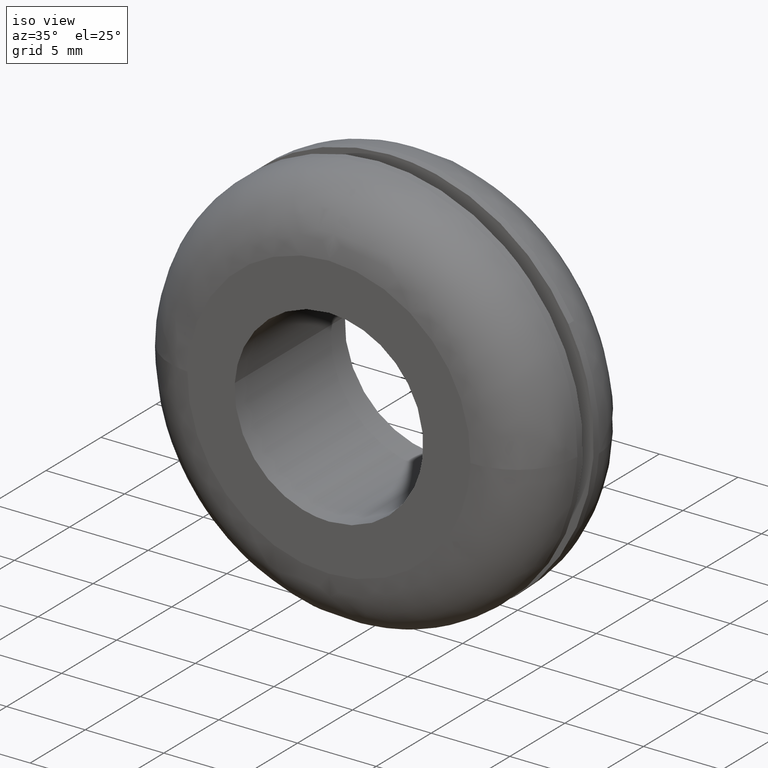
[diagram: clean part render]
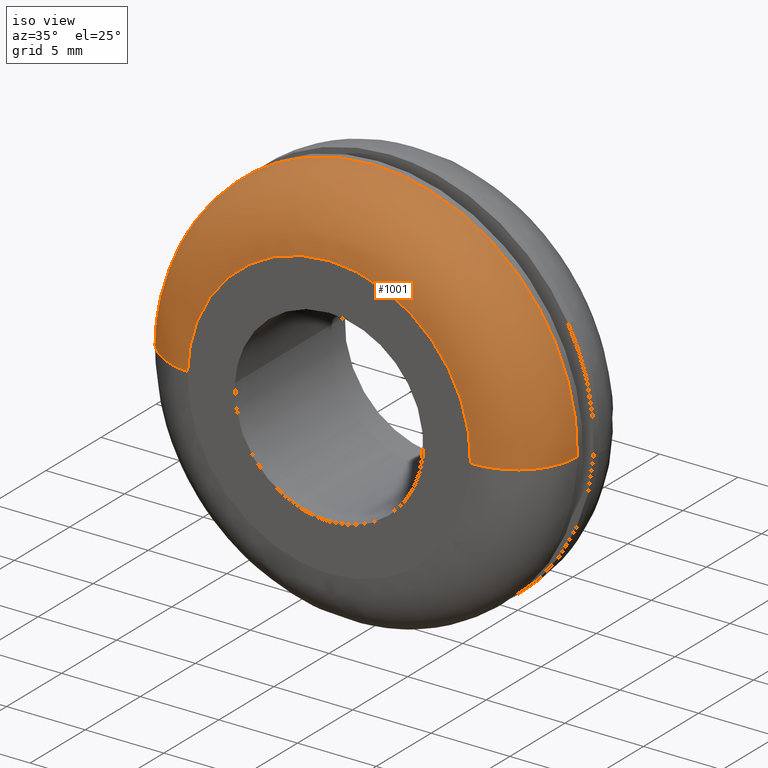
[diagram: tour spotlight — one face highlighted and labeled with its STEP entity id]
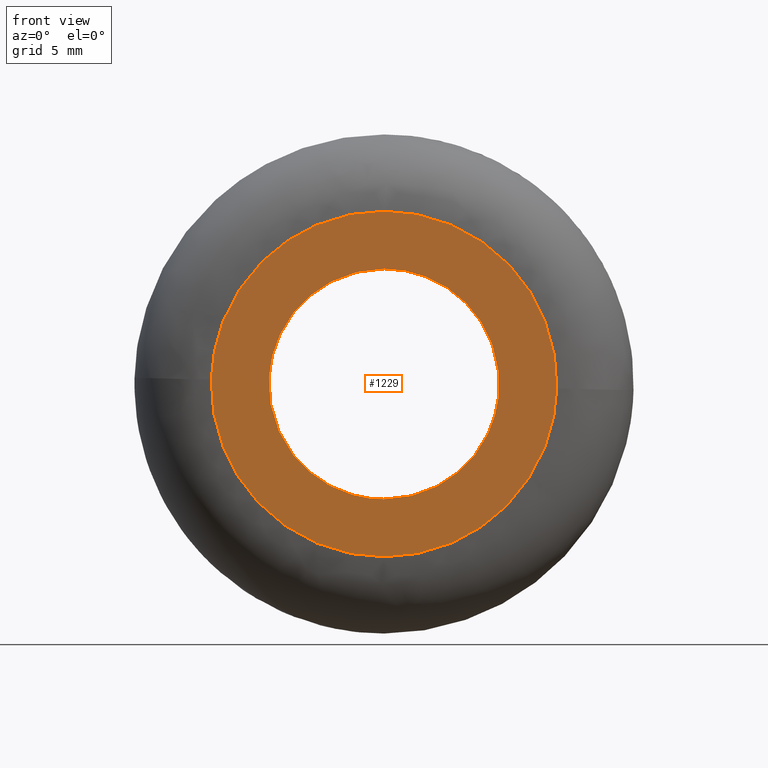
[diagram: tour spotlight — one face highlighted and labeled with its STEP entity id]
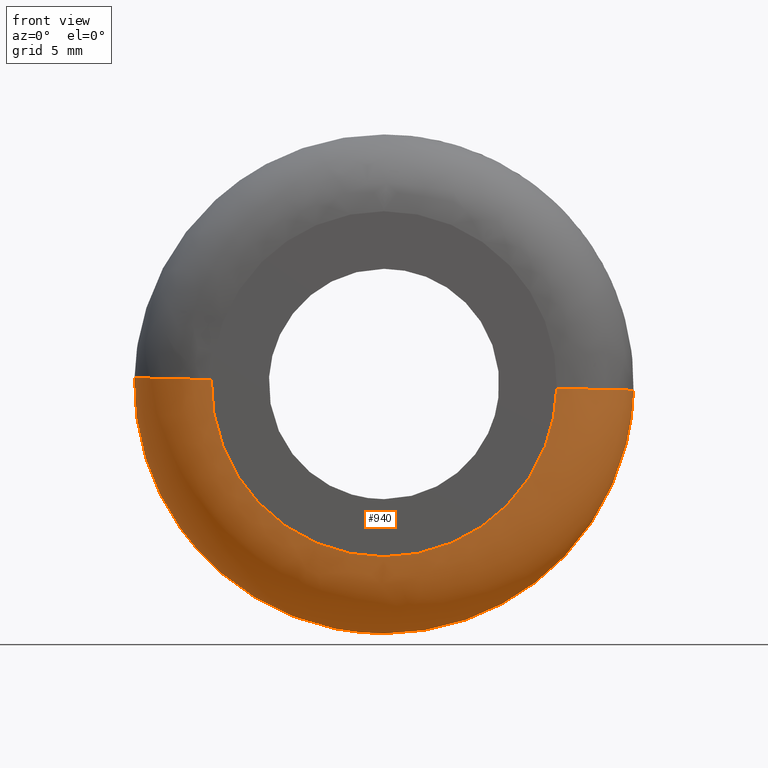
[diagram: tour spotlight — one face highlighted and labeled with its STEP entity id]
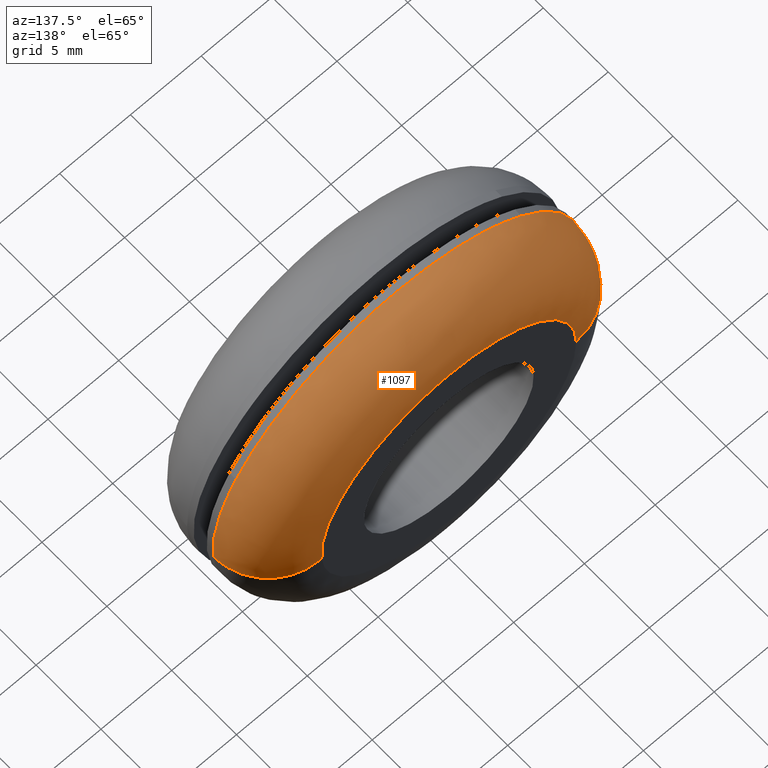
[diagram: tour spotlight — one face highlighted and labeled with its STEP entity id]
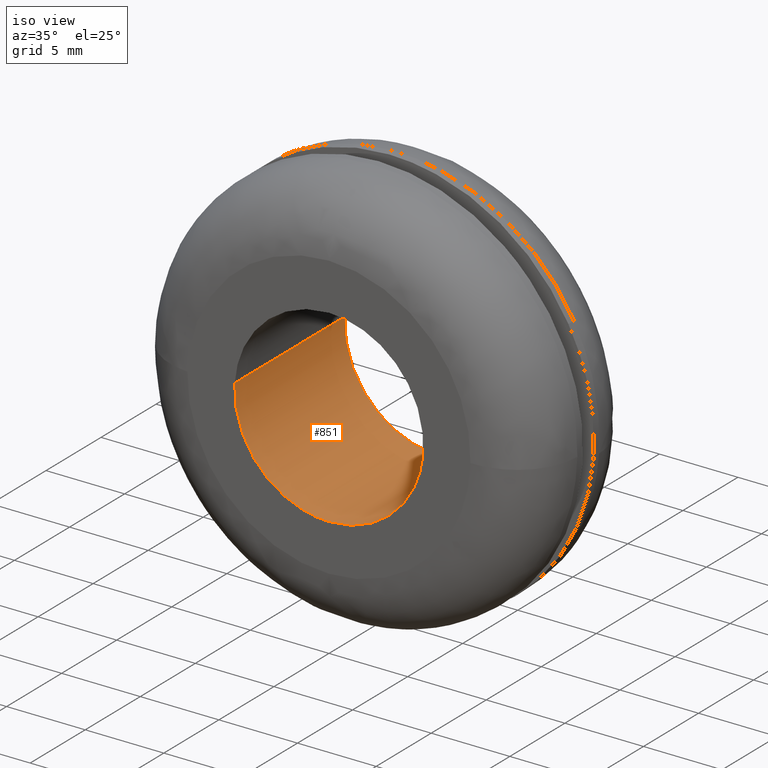
[diagram: tour spotlight — one face highlighted and labeled with its STEP entity id]
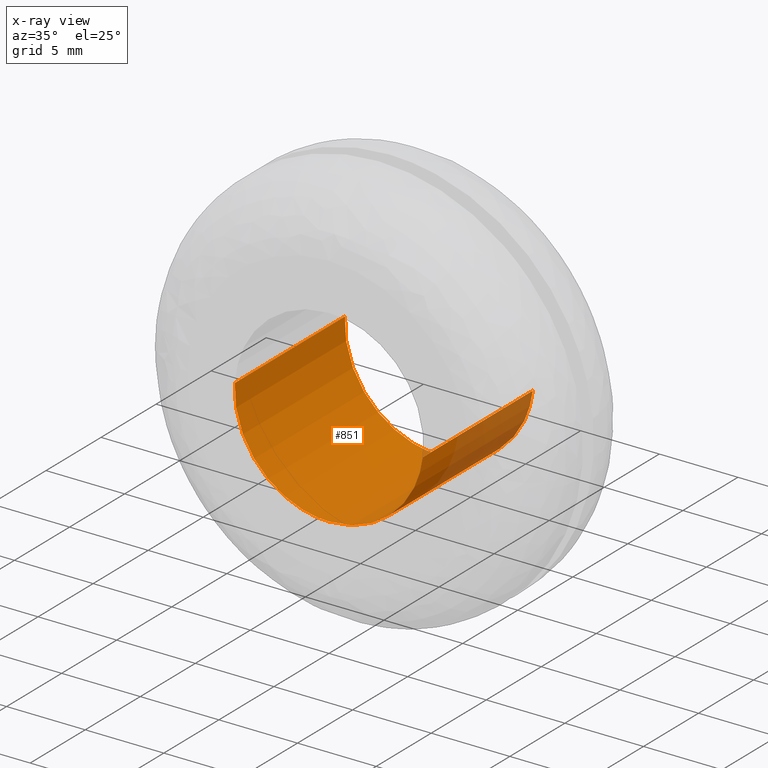
[diagram: x-ray of the same camera — body ghosted, this tour face saturated]
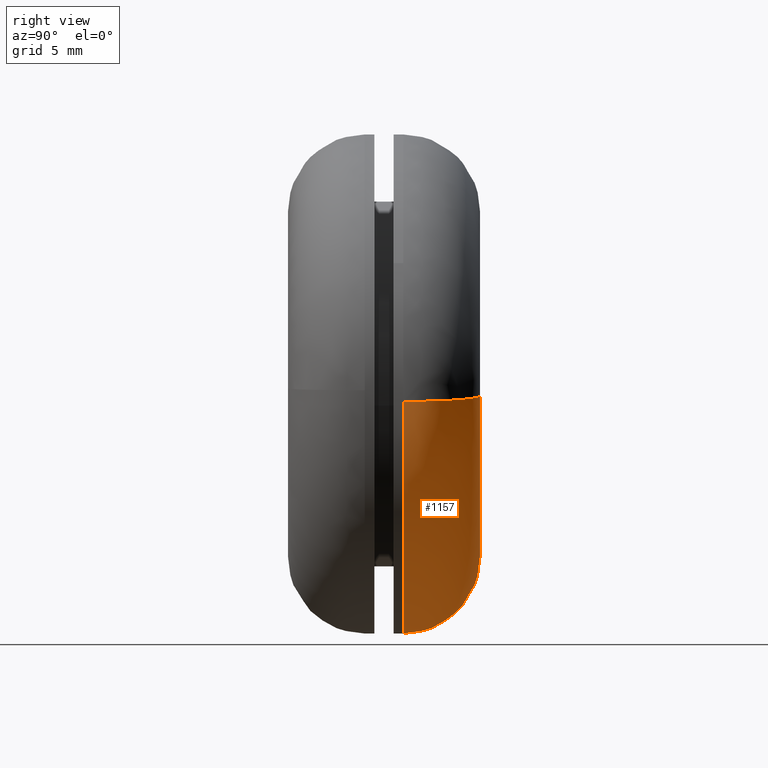
[diagram: tour spotlight — one face highlighted and labeled with its STEP entity id]
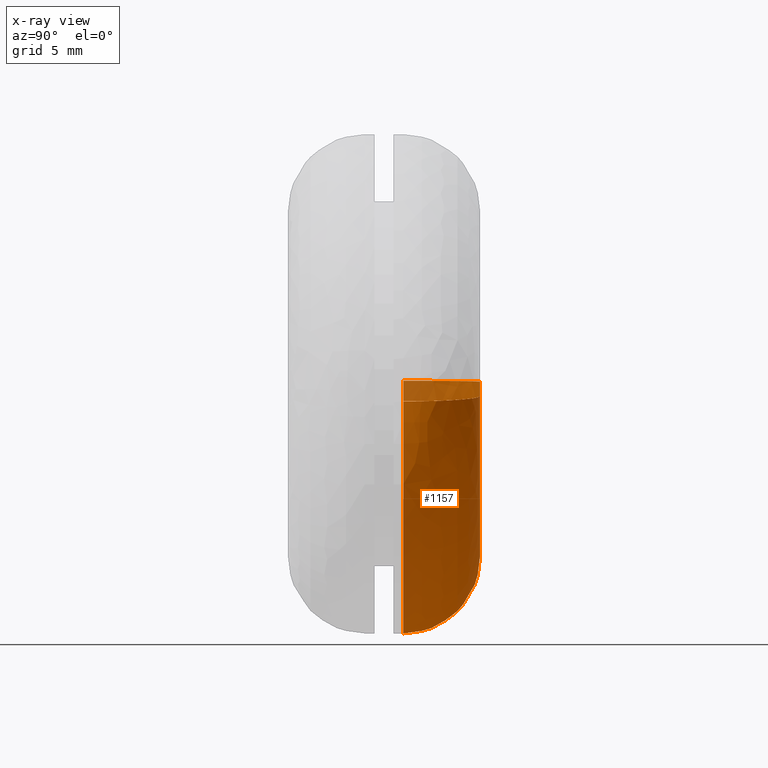
[diagram: x-ray of the same camera — body ghosted, this tour face saturated]
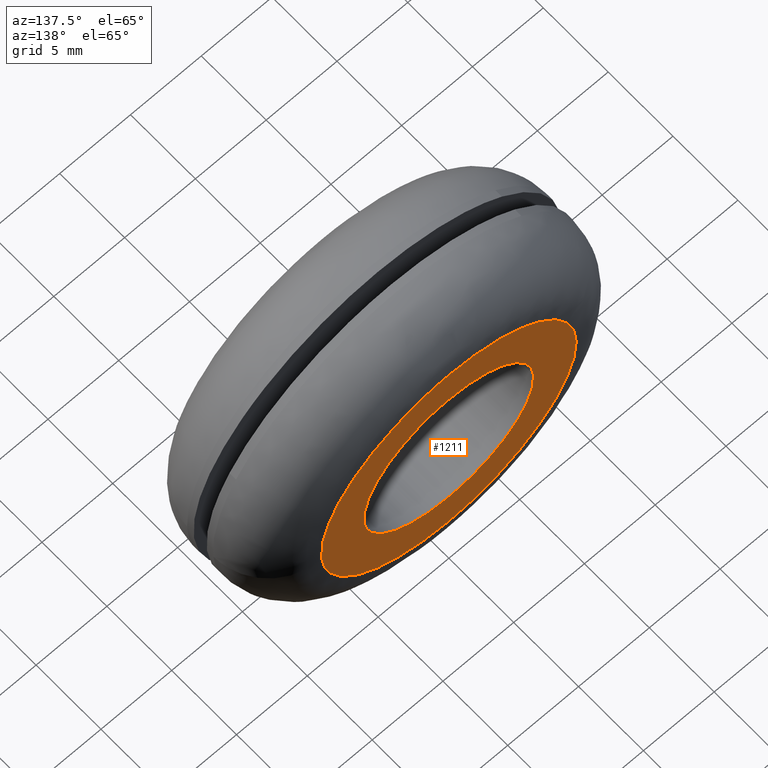
[diagram: tour spotlight — one face highlighted and labeled with its STEP entity id]
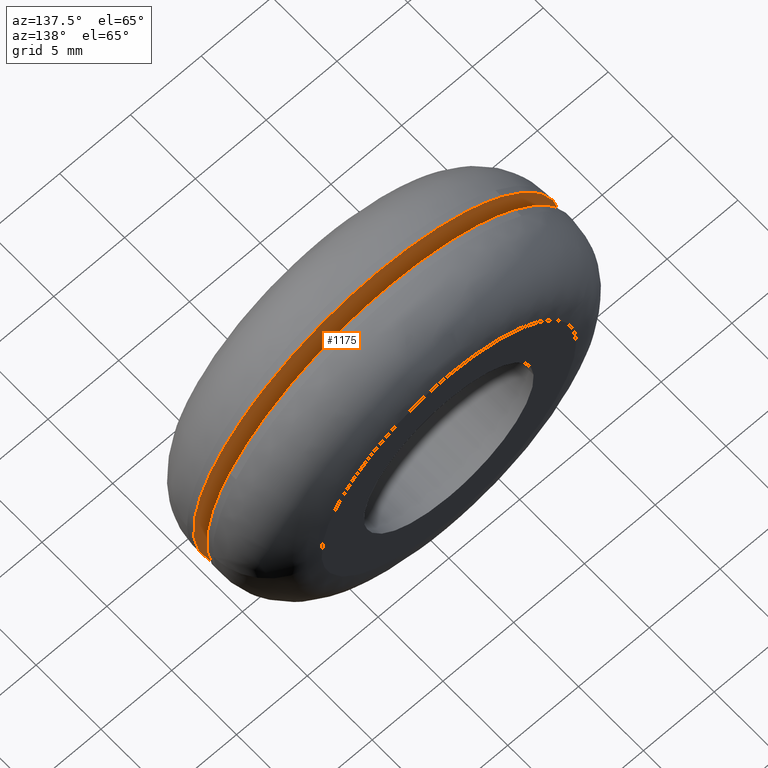
[diagram: tour spotlight — one face highlighted and labeled with its STEP entity id]
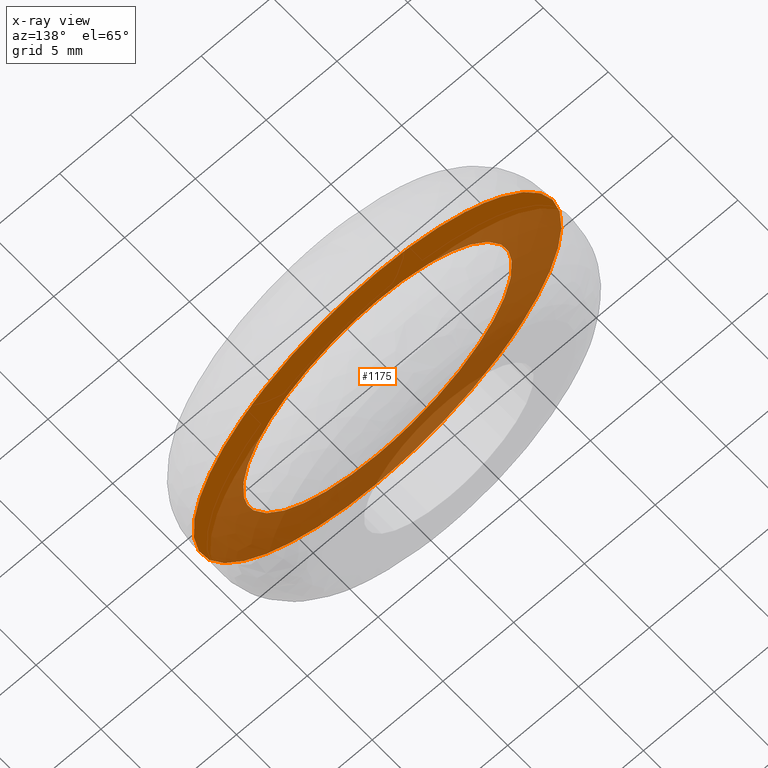
[diagram: x-ray of the same camera — body ghosted, this tour face saturated]
A machine part: a face-by-face anatomy tour. The part has 16 B-rep faces; the first image is the clean iso view, then the 8 largest visible faces are spotlighted one at a time (largest first), each with its STEP entity span.

Face 1 — iso view, entity #1001. In plain terms, the highlighted face is a freeform B-spline surface patch.
Definition (entity closure, byte-faithful):
#115=CARTESIAN_POINT('',(-8.782672160673663,4.000002019822239,9.584605871818566));
#116=VERTEX_POINT('',#115);
#122=CARTESIAN_POINT('',(0.0,4.0,13.0));
#123=VERTEX_POINT('',#122);
#124=CARTESIAN_POINT('',(0.0,4.0,13.0));
#125=CARTESIAN_POINT('',(-5.055422673511163,4.000000842962812,12.999999999999972));
#126=CARTESIAN_POINT('',(-8.782672160673663,4.000002019822239,9.584605871818566));
#134=(BOUNDED_CURVE()B_SPLINE_CURVE(2,(#124,#125,#126),.UNSPECIFIED.,.F.,.U.)B_SPLINE_CURVE_WITH_KNOTS((3,3),(0.500000000000000,0.618415192126431),.UNSPECIFIED.)CURVE()GEOMETRIC_REPRESENTATION_ITEM()RATIONAL_B_SPLINE_CURVE((1.0,0.861267972886705,0.853959782931090))REPRESENTATION_ITEM(''));
#135=EDGE_CURVE('',#123,#116,#134,.T.);
#137=CARTESIAN_POINT('',(12.995894645944650,4.000004227741041,-0.326683870640508));
#138=VERTEX_POINT('',#137);
#139=CARTESIAN_POINT('',(12.995894645944643,4.000004227741041,-0.326683870640508));
#140=CARTESIAN_POINT('',(12.999999999993484,4.000004201835933,-0.163367730796137));
#141=CARTESIAN_POINT('',(12.999999999993520,4.000004175271455,1.632349E-013));
#142=CARTESIAN_POINT('',(12.999999999996801,4.000002061400934,13.000000000000082));
#143=CARTESIAN_POINT('',(0.0,4.0,13.0));
#151=(BOUNDED_CURVE()B_SPLINE_CURVE(2,(#139,#140,#141,#142,#143),.UNSPECIFIED.,.F.,.U.)B_SPLINE_CURVE_WITH_KNOTS((3,2,3),(0.245579991001986,0.250000000000000,0.500000000000000),.UNSPECIFIED.)CURVE()GEOMETRIC_REPRESENTATION_ITEM()RATIONAL_B_SPLINE_CURVE((0.989826381975178,0.994821637349549,1.0,0.707106781186547,1.0))REPRESENTATION_ITEM(''));
#152=EDGE_CURVE('',#138,#123,#151,.T.);
#226=CARTESIAN_POINT('',(-12.995894645944650,4.000004227741041,0.326683870640511));
#227=VERTEX_POINT('',#226);
#243=CARTESIAN_POINT('',(-8.782672160673663,4.000002019822239,9.584605871818566));
#244=CARTESIAN_POINT('',(-12.857023522965608,4.000003306276663,5.851151546622697));
#245=CARTESIAN_POINT('',(-12.995894645944643,4.000004227741041,0.326683870640511));
#253=(BOUNDED_CURVE()B_SPLINE_CURVE(2,(#243,#244,#245),.UNSPECIFIED.,.F.,.U.)B_SPLINE_CURVE_WITH_KNOTS((3,3),(0.618415192126431,0.745579991001986),.UNSPECIFIED.)CURVE()GEOMETRIC_REPRESENTATION_ITEM()RATIONAL_B_SPLINE_CURVE((0.853959782931090,0.846111596485066,0.989826381975178))REPRESENTATION_ITEM(''));
#254=EDGE_CURVE('',#116,#227,#253,.T.);
#878=CARTESIAN_POINT('',(8.997157703604879,2.110930E-017,-0.226170858999227));
#879=VERTEX_POINT('',#878);
#880=CARTESIAN_POINT('',(12.995894645944649,4.000004227741042,-0.326683870640508));
#881=CARTESIAN_POINT('',(12.995898779695210,1.107867E-010,-0.326687661948771));
#882=CARTESIAN_POINT('',(8.997157703604879,2.110930E-017,-0.226170858999227));
#890=(BOUNDED_CURVE()B_SPLINE_CURVE(2,(#880,#881,#882),.UNSPECIFIED.,.F.,.U.)B_SPLINE_CURVE_WITH_KNOTS((3,3),(-1.723442370194829,-0.263586878956495),.UNSPECIFIED.)CURVE()GEOMETRIC_REPRESENTATION_ITEM()RATIONAL_B_SPLINE_CURVE((0.883897950672622,0.626638532037235,0.888510409052266))REPRESENTATION_ITEM(''));
#891=EDGE_CURVE('',#138,#879,#890,.T.);
#908=CARTESIAN_POINT('',(-8.997157703604877,2.110930E-017,0.226170858999227));
#909=VERTEX_POINT('',#908);
#925=CARTESIAN_POINT('',(-12.995894645944649,4.000004227741042,0.326683870640511));
#926=CARTESIAN_POINT('',(-12.995898779695210,1.107867E-010,0.326687661948772));
#927=CARTESIAN_POINT('',(-8.997157703604877,2.110930E-017,0.226170858999227));
#935=(BOUNDED_CURVE()B_SPLINE_CURVE(2,(#925,#926,#927),.UNSPECIFIED.,.F.,.U.)B_SPLINE_CURVE_WITH_KNOTS((3,3),(-1.723442370194829,-0.263586878956495),.UNSPECIFIED.)CURVE()GEOMETRIC_REPRESENTATION_ITEM()RATIONAL_B_SPLINE_CURVE((0.883897950672622,0.626638532037235,0.888510409052266))REPRESENTATION_ITEM(''));
#936=EDGE_CURVE('',#227,#909,#935,.T.);
#941=CARTESIAN_POINT('',(12.986162436593208,4.278901445248244,-0.326446596807972));
#942=CARTESIAN_POINT('',(13.312609033401175,4.278901445248244,12.659715839785230));
#943=CARTESIAN_POINT('',(0.326446596807973,4.278901445248244,12.986162436593208));
#944=CARTESIAN_POINT('',(-12.659715839785230,4.278901445248244,13.312609033401175));
#945=CARTESIAN_POINT('',(-12.986162436593208,4.278901445248244,0.326446596807974));
#946=CARTESIAN_POINT('',(13.306758689542724,-0.309343364484379,-0.334505756412341));
#947=CARTESIAN_POINT('',(13.641264445955066,-0.309343364484379,12.972252933130383));
#948=CARTESIAN_POINT('',(0.334505756412342,-0.309343364484379,13.306758689542724));
#949=CARTESIAN_POINT('',(-12.972252933130381,-0.309343364484379,13.641264445955066));
#950=CARTESIAN_POINT('',(-13.306758689542724,-0.309343364484379,0.334505756412343));
#951=CARTESIAN_POINT('',(8.719842791248651,0.009630613281731,-0.219199707211611));
#952=CARTESIAN_POINT('',(8.939042498460260,0.009630613281731,8.500643084037039));
#953=CARTESIAN_POINT('',(0.219199707211612,0.009630613281731,8.719842791248651));
#954=CARTESIAN_POINT('',(-8.500643084037039,0.009630613281731,8.939042498460260));
#955=CARTESIAN_POINT('',(-8.719842791248651,0.009630613281731,0.219199707211612));
#963=(BOUNDED_SURFACE()B_SPLINE_SURFACE(2,2,((#941,#946,#951),(#942,#947,#952),(#943,#948,#953),(#944,#949,#954),(#945,#950,#955)),.UNSPECIFIED.,.F.,.F.,.U.)B_SPLINE_SURFACE_WITH_KNOTS((3,2,3),(3,3),(0.0,21.522975604018789,43.045951208037593),(0.0,7.289487271390242),.UNSPECIFIED.)GEOMETRIC_REPRESENTATION_ITEM()RATIONAL_B_SPLINE_SURFACE(((0.910893426984365,0.599412675801191,0.915966644802570),(0.644098919158898,0.423848767788196,0.647686225880587),(0.910893426984365,0.599412675801191,0.915966644802570),(0.644098919158898,0.423848767788196,0.647686225880587),(0.910893426984365,0.599412675801191,0.915966644802570)))REPRESENTATION_ITEM('')SURFACE());
#964=ORIENTED_EDGE('',*,*,#135,.T.);
#965=ORIENTED_EDGE('',*,*,#254,.T.);
#966=ORIENTED_EDGE('',*,*,#936,.T.);
#967=CARTESIAN_POINT('',(0.0,-1.332268E-015,9.0));
#968=VERTEX_POINT('',#967);
#969=CARTESIAN_POINT('',(0.0,-1.332268E-015,9.0));
#970=CARTESIAN_POINT('',(-8.776600885610668,-1.332268E-015,9.0));
#971=CARTESIAN_POINT('',(-8.997157703604877,2.110930E-017,0.226170858999227));
#979=(BOUNDED_CURVE()B_SPLINE_CURVE(2,(#969,#970,#971),.UNSPECIFIED.,.F.,.U.)B_SPLINE_CURVE_WITH_KNOTS((3,3),(0.500000000000000,0.745579891769505),.UNSPECIFIED.)CURVE()GEOMETRIC_REPRESENTATION_ITEM()RATIONAL_B_SPLINE_CURVE((1.0,0.712285260095081,0.989826157680893))REPRESENTATION_ITEM(''));
#980=EDGE_CURVE('',#968,#909,#979,.T.);
#981=ORIENTED_EDGE('',*,*,#980,.F.);
#982=CARTESIAN_POINT('',(8.997157703604879,2.110930E-017,-0.226170858999227));
#983=CARTESIAN_POINT('',(9.0,-1.332268E-015,-0.113103289118218));
#984=CARTESIAN_POINT('',(9.0,-1.332268E-015,-2.449213E-016));
#985=CARTESIAN_POINT('',(9.0,-1.332268E-015,9.0));
#986=CARTESIAN_POINT('',(0.0,-1.332268E-015,9.0));
#994=(BOUNDED_CURVE()B_SPLINE_CURVE(2,(#982,#983,#984,#985,#986),.UNSPECIFIED.,.F.,.U.)B_SPLINE_CURVE_WITH_KNOTS((3,2,3),(0.245579891769504,0.250000000000000,0.500000000000000),.UNSPECIFIED.)CURVE()GEOMETRIC_REPRESENTATION_ITEM()RATIONAL_B_SPLINE_CURVE((0.989826157680891,0.994821521091465,1.0,0.707106781186547,1.0))REPRESENTATION_ITEM(''));
#995=EDGE_CURVE('',#879,#968,#994,.T.);
#996=ORIENTED_EDGE('',*,*,#995,.F.);
#997=ORIENTED_EDGE('',*,*,#891,.F.);
#998=ORIENTED_EDGE('',*,*,#152,.T.);
#999=EDGE_LOOP('',(#964,#965,#966,#981,#996,#997,#998));
#1000=FACE_OUTER_BOUND('',#999,.T.);
#1001=ADVANCED_FACE('',(#1000),#963,.T.);

Face 2 — front view, entity #1229. In plain terms, the highlighted face is a freeform B-spline surface patch.
Definition (entity closure, byte-faithful):
#703=CARTESIAN_POINT('',(5.958058387127729,-1.658450E-015,-0.708195068797081));
#704=VERTEX_POINT('',#703);
#710=CARTESIAN_POINT('',(0.0,-1.102146E-015,6.0));
#711=VERTEX_POINT('',#710);
#712=CARTESIAN_POINT('',(5.958058387127729,-1.658450E-015,-0.708195068797081));
#713=CARTESIAN_POINT('',(6.000000000000001,-1.102146E-015,-0.355339493689020));
#714=CARTESIAN_POINT('',(6.0,-1.102146E-015,-2.449213E-016));
#715=CARTESIAN_POINT('',(6.0,-1.102146E-015,6.0));
#716=CARTESIAN_POINT('',(0.0,-1.102146E-015,6.0));
#724=(BOUNDED_CURVE()B_SPLINE_CURVE(2,(#712,#713,#714,#715,#716),.UNSPECIFIED.,.F.,.U.)B_SPLINE_CURVE_WITH_KNOTS((3,2,3),(0.229562766790611,0.250000000000000,0.500000000000000),.UNSPECIFIED.)CURVE()GEOMETRIC_REPRESENTATION_ITEM()RATIONAL_B_SPLINE_CURVE((0.956027329019629,0.976056291926644,1.0,0.707106781186548,1.0))REPRESENTATION_ITEM(''));
#725=EDGE_CURVE('',#704,#711,#724,.T.);
#727=CARTESIAN_POINT('',(-5.988808850591350,-1.133940E-015,0.366290255231747));
#728=VERTEX_POINT('',#727);
#729=CARTESIAN_POINT('',(0.0,-1.102146E-015,6.0));
#730=CARTESIAN_POINT('',(-5.644238255849889,-1.102146E-015,6.0));
#731=CARTESIAN_POINT('',(-5.988808850591350,-1.133940E-015,0.366290255231747));
#739=(BOUNDED_CURVE()B_SPLINE_CURVE(2,(#729,#730,#731),.UNSPECIFIED.,.F.,.U.)B_SPLINE_CURVE_WITH_KNOTS((3,3),(0.500000000000000,0.739333018826529),.UNSPECIFIED.)CURVE()GEOMETRIC_REPRESENTATION_ITEM()RATIONAL_B_SPLINE_CURVE((1.0,0.719603926990230,0.976072162944716))REPRESENTATION_ITEM(''));
#740=EDGE_CURVE('',#711,#728,#739,.T.);
#818=CARTESIAN_POINT('',(0.0,-1.102146E-015,-6.0));
#819=VERTEX_POINT('',#818);
#820=CARTESIAN_POINT('',(-5.988808850591350,-1.133940E-015,0.366290255231747));
#821=CARTESIAN_POINT('',(-6.0,-1.102146E-015,0.183315595060784));
#822=CARTESIAN_POINT('',(-6.0,-1.102146E-015,-2.449213E-016));
#823=CARTESIAN_POINT('',(-6.0,-1.102146E-015,-6.0));
#824=CARTESIAN_POINT('',(0.0,-1.102146E-015,-6.0));
#832=(BOUNDED_CURVE()B_SPLINE_CURVE(2,(#820,#821,#822,#823,#824),.UNSPECIFIED.,.F.,.U.)B_SPLINE_CURVE_WITH_KNOTS((3,2,3),(0.739333018826529,0.750000000000000,1.0),.UNSPECIFIED.)CURVE()GEOMETRIC_REPRESENTATION_ITEM()RATIONAL_B_SPLINE_CURVE((0.976072162944716,0.987502854196318,1.0,0.707106781186548,1.0))REPRESENTATION_ITEM(''));
#833=EDGE_CURVE('',#728,#819,#832,.T.);
#835=CARTESIAN_POINT('',(0.0,-1.102146E-015,-6.0));
#836=CARTESIAN_POINT('',(5.329056468422727,-1.102146E-015,-6.0));
#837=CARTESIAN_POINT('',(5.958058387127729,-1.658450E-015,-0.708195068797081));
#845=(BOUNDED_CURVE()B_SPLINE_CURVE(2,(#835,#836,#837),.UNSPECIFIED.,.F.,.U.)B_SPLINE_CURVE_WITH_KNOTS((3,3),(0.0,0.229562766790611),.UNSPECIFIED.)CURVE()GEOMETRIC_REPRESENTATION_ITEM()RATIONAL_B_SPLINE_CURVE((1.0,0.731050489259904,0.956027329019629))REPRESENTATION_ITEM(''));
#846=EDGE_CURVE('',#819,#704,#845,.T.);
#878=CARTESIAN_POINT('',(8.997157703604879,2.110930E-017,-0.226170858999227));
#879=VERTEX_POINT('',#878);
#893=CARTESIAN_POINT('',(0.0,-1.332268E-015,-9.0));
#894=VERTEX_POINT('',#893);
#895=CARTESIAN_POINT('',(0.0,-1.332268E-015,-9.0));
#896=CARTESIAN_POINT('',(8.776600885610622,-1.332268E-015,-9.0));
#897=CARTESIAN_POINT('',(8.997157703604879,2.110930E-017,-0.226170858999227));
#905=(BOUNDED_CURVE()B_SPLINE_CURVE(2,(#895,#896,#897),.UNSPECIFIED.,.F.,.U.)B_SPLINE_CURVE_WITH_KNOTS((3,3),(0.0,0.245579891769504),.UNSPECIFIED.)CURVE()GEOMETRIC_REPRESENTATION_ITEM()RATIONAL_B_SPLINE_CURVE((1.0,0.712285260095083,0.989826157680890))REPRESENTATION_ITEM(''));
#906=EDGE_CURVE('',#894,#879,#905,.T.);
#908=CARTESIAN_POINT('',(-8.997157703604877,2.110930E-017,0.226170858999227));
#909=VERTEX_POINT('',#908);
#910=CARTESIAN_POINT('',(-8.997157703604877,2.110930E-017,0.226170858999227));
#911=CARTESIAN_POINT('',(-9.0,-1.332268E-015,0.113103289118217));
#912=CARTESIAN_POINT('',(-9.0,-1.332268E-015,-2.449213E-016));
#913=CARTESIAN_POINT('',(-9.0,-1.332268E-015,-9.0));
#914=CARTESIAN_POINT('',(0.0,-1.332268E-015,-9.0));
#922=(BOUNDED_CURVE()B_SPLINE_CURVE(2,(#910,#911,#912,#913,#914),.UNSPECIFIED.,.F.,.U.)B_SPLINE_CURVE_WITH_KNOTS((3,2,3),(0.745579891769504,0.750000000000000,1.0),.UNSPECIFIED.)CURVE()GEOMETRIC_REPRESENTATION_ITEM()RATIONAL_B_SPLINE_CURVE((0.989826157680891,0.994821521091465,1.0,0.707106781186547,1.0))REPRESENTATION_ITEM(''));
#923=EDGE_CURVE('',#909,#894,#922,.T.);
#967=CARTESIAN_POINT('',(0.0,-1.332268E-015,9.0));
#968=VERTEX_POINT('',#967);
#969=CARTESIAN_POINT('',(0.0,-1.332268E-015,9.0));
#970=CARTESIAN_POINT('',(-8.776600885610668,-1.332268E-015,9.0));
#971=CARTESIAN_POINT('',(-8.997157703604877,2.110930E-017,0.226170858999227));
#979=(BOUNDED_CURVE()B_SPLINE_CURVE(2,(#969,#970,#971),.UNSPECIFIED.,.F.,.U.)B_SPLINE_CURVE_WITH_KNOTS((3,3),(0.500000000000000,0.745579891769505),.UNSPECIFIED.)CURVE()GEOMETRIC_REPRESENTATION_ITEM()RATIONAL_B_SPLINE_CURVE((1.0,0.712285260095081,0.989826157680893))REPRESENTATION_ITEM(''));
#980=EDGE_CURVE('',#968,#909,#979,.T.);
#982=CARTESIAN_POINT('',(8.997157703604879,2.110930E-017,-0.226170858999227));
#983=CARTESIAN_POINT('',(9.0,-1.332268E-015,-0.113103289118218));
#984=CARTESIAN_POINT('',(9.0,-1.332268E-015,-2.449213E-016));
#985=CARTESIAN_POINT('',(9.0,-1.332268E-015,9.0));
#986=CARTESIAN_POINT('',(0.0,-1.332268E-015,9.0));
#994=(BOUNDED_CURVE()B_SPLINE_CURVE(2,(#982,#983,#984,#985,#986),.UNSPECIFIED.,.F.,.U.)B_SPLINE_CURVE_WITH_KNOTS((3,2,3),(0.245579891769504,0.250000000000000,0.500000000000000),.UNSPECIFIED.)CURVE()GEOMETRIC_REPRESENTATION_ITEM()RATIONAL_B_SPLINE_CURVE((0.989826157680891,0.994821521091465,1.0,0.707106781186547,1.0))REPRESENTATION_ITEM(''));
#995=EDGE_CURVE('',#879,#968,#994,.T.);
#1212=CARTESIAN_POINT('',(-9.895974061154046,-1.217207E-015,-9.899099965112507));
#1213=CARTESIAN_POINT('',(-9.895974061154044,-1.217207E-015,9.899100447910129));
#1214=CARTESIAN_POINT('',(9.895974222035765,-1.217207E-015,-9.899099965112507));
#1215=CARTESIAN_POINT('',(9.895974222035765,-1.217207E-015,9.899100447910129));
#1216=B_SPLINE_SURFACE_WITH_KNOTS('',1,1,((#1212,#1214),(#1213,#1215)),.UNSPECIFIED.,.F.,.F.,.U.,(2,2),(2,2),(0.0,19.798200413022631),(0.0,19.791948283189811),.UNSPECIFIED.);
#1217=ORIENTED_EDGE('',*,*,#906,.T.);
#1218=ORIENTED_EDGE('',*,*,#995,.T.);
#1219=ORIENTED_EDGE('',*,*,#980,.T.);
#1220=ORIENTED_EDGE('',*,*,#923,.T.);
#1221=EDGE_LOOP('',(#1217,#1218,#1219,#1220));
#1222=FACE_OUTER_BOUND('',#1221,.T.);
#1223=ORIENTED_EDGE('',*,*,#740,.F.);
#1224=ORIENTED_EDGE('',*,*,#725,.F.);
#1225=ORIENTED_EDGE('',*,*,#846,.F.);
#1226=ORIENTED_EDGE('',*,*,#833,.F.);
#1227=EDGE_LOOP('',(#1223,#1224,#1225,#1226));
#1228=FACE_BOUND('',#1227,.T.);
#1229=ADVANCED_FACE('',(#1222,#1228),#1216,.F.);

Face 3 — front view, entity #940. In plain terms, the highlighted face is a freeform B-spline surface patch.
Definition (entity closure, byte-faithful):
#137=CARTESIAN_POINT('',(12.995894645944650,4.000004227741041,-0.326683870640508));
#138=VERTEX_POINT('',#137);
#154=CARTESIAN_POINT('',(0.0,4.0,-13.0));
#155=VERTEX_POINT('',#154);
#156=CARTESIAN_POINT('',(0.0,4.0,-13.0));
#157=CARTESIAN_POINT('',(12.677319582069439,4.000002113870520,-12.999999999999917));
#158=CARTESIAN_POINT('',(12.995894645944643,4.000004227741041,-0.326683870640508));
#166=(BOUNDED_CURVE()B_SPLINE_CURVE(2,(#156,#157,#158),.UNSPECIFIED.,.F.,.U.)B_SPLINE_CURVE_WITH_KNOTS((3,3),(0.0,0.245579991001986),.UNSPECIFIED.)CURVE()GEOMETRIC_REPRESENTATION_ITEM()RATIONAL_B_SPLINE_CURVE((1.0,0.712285143836998,0.989826381975178))REPRESENTATION_ITEM(''));
#167=EDGE_CURVE('',#155,#138,#166,.T.);
#169=CARTESIAN_POINT('',(-8.506415116792454,4.000001864216555,-9.830610452092005));
#170=VERTEX_POINT('',#169);
#171=CARTESIAN_POINT('',(-8.506415116792454,4.000001864216554,-9.830610452092005));
#172=CARTESIAN_POINT('',(-4.843645747323591,4.000000768053528,-13.000000000000034));
#173=CARTESIAN_POINT('',(0.0,4.0,-13.0));
#181=(BOUNDED_CURVE()B_SPLINE_CURVE(2,(#171,#172,#173),.UNSPECIFIED.,.F.,.U.)B_SPLINE_CURVE_WITH_KNOTS((3,3),(0.885882132988764,1.0),.UNSPECIFIED.)CURVE()GEOMETRIC_REPRESENTATION_ITEM()RATIONAL_B_SPLINE_CURVE((0.854663299542757,0.866302602427814,1.0))REPRESENTATION_ITEM(''));
#182=EDGE_CURVE('',#170,#155,#181,.T.);
#226=CARTESIAN_POINT('',(-12.995894645944650,4.000004227741041,0.326683870640511));
#227=VERTEX_POINT('',#226);
#228=CARTESIAN_POINT('',(-12.995894645944643,4.000004227741041,0.326683870640511));
#229=CARTESIAN_POINT('',(-12.999999999993484,4.000004201835933,0.163367730796139));
#230=CARTESIAN_POINT('',(-12.999999999993520,4.000004175271455,-1.605999E-013));
#231=CARTESIAN_POINT('',(-12.999999999995021,4.000003209018423,-5.942317326080990));
#232=CARTESIAN_POINT('',(-8.506415116792454,4.000001864216555,-9.830610452092005));
#240=(BOUNDED_CURVE()B_SPLINE_CURVE(2,(#228,#229,#230,#231,#232),.UNSPECIFIED.,.F.,.U.)B_SPLINE_CURVE_WITH_KNOTS((3,2,3),(0.745579991001986,0.750000000000000,0.885882132988763),.UNSPECIFIED.)CURVE()GEOMETRIC_REPRESENTATION_ITEM()RATIONAL_B_SPLINE_CURVE((0.989826381975178,0.994821637349549,1.0,0.840804178758734,0.854663299542757))REPRESENTATION_ITEM(''));
#241=EDGE_CURVE('',#227,#170,#240,.T.);
#852=CARTESIAN_POINT('',(-12.986162436593208,4.278901445248244,0.326446596807974));
#853=CARTESIAN_POINT('',(-13.312609033401181,4.278901445248244,-12.659715839785228));
#854=CARTESIAN_POINT('',(-0.326446596807978,4.278901445248244,-12.986162436593208));
#855=CARTESIAN_POINT('',(12.659715839785228,4.278901445248244,-13.312609033401181));
#856=CARTESIAN_POINT('',(12.986162436593208,4.278901445248244,-0.326446596807979));
#857=CARTESIAN_POINT('',(-13.306758689542724,-0.309343364484379,0.334505756412343));
#858=CARTESIAN_POINT('',(-13.641264445955070,-0.309343364484379,-12.972252933130379));
#859=CARTESIAN_POINT('',(-0.334505756412346,-0.309343364484379,-13.306758689542724));
#860=CARTESIAN_POINT('',(12.972252933130379,-0.309343364484379,-13.641264445955070));
#861=CARTESIAN_POINT('',(13.306758689542724,-0.309343364484379,-0.334505756412347));
#862=CARTESIAN_POINT('',(-8.719842791248651,0.009630613281731,0.219199707211612));
#863=CARTESIAN_POINT('',(-8.939042498460264,0.009630613281731,-8.500643084037035));
#864=CARTESIAN_POINT('',(-0.219199707211615,0.009630613281731,-8.719842791248651));
#865=CARTESIAN_POINT('',(8.500643084037035,0.009630613281731,-8.939042498460266));
#866=CARTESIAN_POINT('',(8.719842791248651,0.009630613281731,-0.219199707211615));
#874=(BOUNDED_SURFACE()B_SPLINE_SURFACE(2,2,((#852,#857,#862),(#853,#858,#863),(#854,#859,#864),(#855,#860,#865),(#856,#861,#866)),.UNSPECIFIED.,.F.,.F.,.U.)B_SPLINE_SURFACE_WITH_KNOTS((3,2,3),(3,3),(0.0,21.522975604018800,43.045951208037593),(0.0,7.289487271390244),.UNSPECIFIED.)GEOMETRIC_REPRESENTATION_ITEM()RATIONAL_B_SPLINE_SURFACE(((0.910893426984365,0.599412675801191,0.915966644802570),(0.644098919158898,0.423848767788196,0.647686225880587),(0.910893426984365,0.599412675801191,0.915966644802570),(0.644098919158898,0.423848767788196,0.647686225880587),(0.910893426984365,0.599412675801191,0.915966644802570)))REPRESENTATION_ITEM('')SURFACE());
#875=ORIENTED_EDGE('',*,*,#241,.T.);
#876=ORIENTED_EDGE('',*,*,#182,.T.);
#877=ORIENTED_EDGE('',*,*,#167,.T.);
#878=CARTESIAN_POINT('',(8.997157703604879,2.110930E-017,-0.226170858999227));
#879=VERTEX_POINT('',#878);
#880=CARTESIAN_POINT('',(12.995894645944649,4.000004227741042,-0.326683870640508));
#881=CARTESIAN_POINT('',(12.995898779695210,1.107867E-010,-0.326687661948771));
#882=CARTESIAN_POINT('',(8.997157703604879,2.110930E-017,-0.226170858999227));
#890=(BOUNDED_CURVE()B_SPLINE_CURVE(2,(#880,#881,#882),.UNSPECIFIED.,.F.,.U.)B_SPLINE_CURVE_WITH_KNOTS((3,3),(-1.723442370194829,-0.263586878956495),.UNSPECIFIED.)CURVE()GEOMETRIC_REPRESENTATION_ITEM()RATIONAL_B_SPLINE_CURVE((0.883897950672622,0.626638532037235,0.888510409052266))REPRESENTATION_ITEM(''));
#891=EDGE_CURVE('',#138,#879,#890,.T.);
#892=ORIENTED_EDGE('',*,*,#891,.T.);
#893=CARTESIAN_POINT('',(0.0,-1.332268E-015,-9.0));
#894=VERTEX_POINT('',#893);
#895=CARTESIAN_POINT('',(0.0,-1.332268E-015,-9.0));
#896=CARTESIAN_POINT('',(8.776600885610622,-1.332268E-015,-9.0));
#897=CARTESIAN_POINT('',(8.997157703604879,2.110930E-017,-0.226170858999227));
#905=(BOUNDED_CURVE()B_SPLINE_CURVE(2,(#895,#896,#897),.UNSPECIFIED.,.F.,.U.)B_SPLINE_CURVE_WITH_KNOTS((3,3),(0.0,0.245579891769504),.UNSPECIFIED.)CURVE()GEOMETRIC_REPRESENTATION_ITEM()RATIONAL_B_SPLINE_CURVE((1.0,0.712285260095083,0.989826157680890))REPRESENTATION_ITEM(''));
#906=EDGE_CURVE('',#894,#879,#905,.T.);
#907=ORIENTED_EDGE('',*,*,#906,.F.);
#908=CARTESIAN_POINT('',(-8.997157703604877,2.110930E-017,0.226170858999227));
#909=VERTEX_POINT('',#908);
#910=CARTESIAN_POINT('',(-8.997157703604877,2.110930E-017,0.226170858999227));
#911=CARTESIAN_POINT('',(-9.0,-1.332268E-015,0.113103289118217));
#912=CARTESIAN_POINT('',(-9.0,-1.332268E-015,-2.449213E-016));
#913=CARTESIAN_POINT('',(-9.0,-1.332268E-015,-9.0));
#914=CARTESIAN_POINT('',(0.0,-1.332268E-015,-9.0));
#922=(BOUNDED_CURVE()B_SPLINE_CURVE(2,(#910,#911,#912,#913,#914),.UNSPECIFIED.,.F.,.U.)B_SPLINE_CURVE_WITH_KNOTS((3,2,3),(0.745579891769504,0.750000000000000,1.0),.UNSPECIFIED.)CURVE()GEOMETRIC_REPRESENTATION_ITEM()RATIONAL_B_SPLINE_CURVE((0.989826157680891,0.994821521091465,1.0,0.707106781186547,1.0))REPRESENTATION_ITEM(''));
#923=EDGE_CURVE('',#909,#894,#922,.T.);
#924=ORIENTED_EDGE('',*,*,#923,.F.);
#925=CARTESIAN_POINT('',(-12.995894645944649,4.000004227741042,0.326683870640511));
#926=CARTESIAN_POINT('',(-12.995898779695210,1.107867E-010,0.326687661948772));
#927=CARTESIAN_POINT('',(-8.997157703604877,2.110930E-017,0.226170858999227));
#935=(BOUNDED_CURVE()B_SPLINE_CURVE(2,(#925,#926,#927),.UNSPECIFIED.,.F.,.U.)B_SPLINE_CURVE_WITH_KNOTS((3,3),(-1.723442370194829,-0.263586878956495),.UNSPECIFIED.)CURVE()GEOMETRIC_REPRESENTATION_ITEM()RATIONAL_B_SPLINE_CURVE((0.883897950672622,0.626638532037235,0.888510409052266))REPRESENTATION_ITEM(''));
#936=EDGE_CURVE('',#227,#909,#935,.T.);
#937=ORIENTED_EDGE('',*,*,#936,.F.);
#938=EDGE_LOOP('',(#875,#876,#877,#892,#907,#924,#937));
#939=FACE_OUTER_BOUND('',#938,.T.);
#940=ADVANCED_FACE('',(#939),#874,.T.);

Face 4 — auxiliary view, entity #1097. In plain terms, the highlighted face is a freeform B-spline surface patch.
Definition (entity closure, byte-faithful):
#464=CARTESIAN_POINT('',(11.374304720858300,5.999994954303111,6.294854415866223));
#465=VERTEX_POINT('',#464);
#466=CARTESIAN_POINT('',(0.0,6.0,13.0));
#467=VERTEX_POINT('',#466);
#468=CARTESIAN_POINT('',(11.374304720858298,5.999994954303111,6.294854415866223));
#469=CARTESIAN_POINT('',(7.663491943716938,5.999997917120351,13.000000000000275));
#470=CARTESIAN_POINT('',(0.0,6.0,13.0));
#478=(BOUNDED_CURVE()B_SPLINE_CURVE(2,(#468,#469,#470),.UNSPECIFIED.,.F.,.U.)B_SPLINE_CURVE_WITH_KNOTS((3,3),(0.332484260513103,0.500000000000000),.UNSPECIFIED.)CURVE()GEOMETRIC_REPRESENTATION_ITEM()RATIONAL_B_SPLINE_CURVE((0.870495160132599,0.803743103439068,1.0))REPRESENTATION_ITEM(''));
#479=EDGE_CURVE('',#465,#467,#478,.T.);
#481=CARTESIAN_POINT('',(-8.782672170068333,5.999996391977601,9.584605863207582));
#482=VERTEX_POINT('',#481);
#483=CARTESIAN_POINT('',(0.0,6.0,13.0));
#484=CARTESIAN_POINT('',(-5.055422688182448,5.999998499428219,12.999999999999956));
#485=CARTESIAN_POINT('',(-8.782672170068333,5.999996391977600,9.584605863207582));
#493=(BOUNDED_CURVE()B_SPLINE_CURVE(2,(#483,#484,#485),.UNSPECIFIED.,.F.,.U.)B_SPLINE_CURVE_WITH_KNOTS((3,3),(0.500000000000000,0.618415192422450),.UNSPECIFIED.)CURVE()GEOMETRIC_REPRESENTATION_ITEM()RATIONAL_B_SPLINE_CURVE((1.0,0.861267972539898,0.853959782894552))REPRESENTATION_ITEM(''));
#494=EDGE_CURVE('',#467,#482,#493,.T.);
#563=CARTESIAN_POINT('',(12.968353783879341,5.999992422170896,-0.906531927605974));
#564=VERTEX_POINT('',#563);
#565=CARTESIAN_POINT('',(12.968353783879333,5.999992422170896,-0.906531927605974));
#566=CARTESIAN_POINT('',(12.999999999985908,5.999992545515316,-0.453818334305598));
#567=CARTESIAN_POINT('',(12.999999999986160,5.999992677782925,9.687914E-013));
#568=CARTESIAN_POINT('',(12.999999999988002,5.999993656299678,3.357351454468332));
#569=CARTESIAN_POINT('',(11.374304720858298,5.999994954303111,6.294854415866223));
#577=(BOUNDED_CURVE()B_SPLINE_CURVE(2,(#565,#566,#567,#568,#569),.UNSPECIFIED.,.F.,.U.)B_SPLINE_CURVE_WITH_KNOTS((3,2,3),(0.237833691082226,0.250000000000000,0.332484260513103),.UNSPECIFIED.)CURVE()GEOMETRIC_REPRESENTATION_ITEM()RATIONAL_B_SPLINE_CURVE((0.972879886004556,0.985746282479977,1.0,0.903363677747479,0.870495160132599))REPRESENTATION_ITEM(''));
#578=EDGE_CURVE('',#564,#465,#577,.T.);
#614=CARTESIAN_POINT('',(-12.998973683911879,5.999992378941576,0.163349822507249));
#615=VERTEX_POINT('',#614);
#616=CARTESIAN_POINT('',(-8.782672170068333,5.999996391977600,9.584605863207582));
#617=CARTESIAN_POINT('',(-12.928319674163452,5.999994047958732,5.785820660463391));
#618=CARTESIAN_POINT('',(-12.998973683911885,5.999992378941576,0.163349822507249));
#626=(BOUNDED_CURVE()B_SPLINE_CURVE(2,(#616,#617,#618),.UNSPECIFIED.,.F.,.U.)B_SPLINE_CURVE_WITH_KNOTS((3,3),(0.618415192422449,0.747784413572241),.UNSPECIFIED.)CURVE()GEOMETRIC_REPRESENTATION_ITEM()RATIONAL_B_SPLINE_CURVE((0.853959782894552,0.845975547231104,0.994854566429976))REPRESENTATION_ITEM(''));
#627=EDGE_CURVE('',#482,#615,#626,.T.);
#1002=CARTESIAN_POINT('',(8.700619441673801,9.990317439328388,-0.608202566452449));
#1003=CARTESIAN_POINT('',(8.718025921027255,9.990317439328392,-0.359194816358347));
#1004=CARTESIAN_POINT('',(8.721162598029007,9.990317439328386,-0.109599130522642));
#1005=CARTESIAN_POINT('',(8.830761728551650,9.990317439328390,8.611563467506365));
#1006=CARTESIAN_POINT('',(0.109599130522642,9.990317439328386,8.721162598029007));
#1007=CARTESIAN_POINT('',(-8.611563467506365,9.990317439328390,8.830761728551650));
#1008=CARTESIAN_POINT('',(-8.721162598029007,9.990317439328386,0.109599130522643));
#1009=CARTESIAN_POINT('',(13.277756521595476,10.310149579948828,-0.928159845089324));
#1010=CARTESIAN_POINT('',(13.304320031964219,10.310149579948826,-0.548156524647149));
#1011=CARTESIAN_POINT('',(13.309106821433106,10.310149579948828,-0.167255972958432));
#1012=CARTESIAN_POINT('',(13.476362794391537,10.310149579948829,13.141850848474672));
#1013=CARTESIAN_POINT('',(0.167255972958433,10.310149579948828,13.309106821433106));
#1014=CARTESIAN_POINT('',(-13.141850848474672,10.310149579948829,13.476362794391537));
#1015=CARTESIAN_POINT('',(-13.309106821433106,10.310149579948828,0.167255972958434));
#1016=CARTESIAN_POINT('',(12.958694294725055,5.721843688340266,-0.905856322157249));
#1017=CARTESIAN_POINT('',(12.984619488465682,5.721843688340267,-0.534984416758063));
#1018=CARTESIAN_POINT('',(12.989291252199228,5.721843688340266,-0.163236840426313));
#1019=CARTESIAN_POINT('',(13.152528092625547,5.721843688340266,12.826054411772915));
#1020=CARTESIAN_POINT('',(0.163236840426314,5.721843688340266,12.989291252199228));
#1021=CARTESIAN_POINT('',(-12.826054411772915,5.721843688340266,13.152528092625547));
#1022=CARTESIAN_POINT('',(-12.989291252199228,5.721843688340266,0.163236840426315));
#1030=(BOUNDED_SURFACE()B_SPLINE_SURFACE(2,2,((#1002,#1009,#1016),(#1003,#1010,#1017),(#1004,#1011,#1018),(#1005,#1012,#1019),(#1006,#1013,#1020),(#1007,#1014,#1021),(#1008,#1015,#1022)),.UNSPECIFIED.,.F.,.F.,.U.)B_SPLINE_SURFACE_WITH_KNOTS((3,2,2,3),(3,3),(0.0,0.860921650143536,22.383983429723148,43.907045209302773),(0.0,7.289505572545739),.UNSPECIFIED.)GEOMETRIC_REPRESENTATION_ITEM()RATIONAL_B_SPLINE_SURFACE(((0.895729770452263,0.587799803068090,0.895730542630725),(0.905606528468933,0.594281173464229,0.905607309161815),(0.916342134118506,0.601326140701892,0.916342924066192),(0.647951736922148,0.425201791795044,0.647952295499514),(0.916342134118506,0.601326140701892,0.916342924066192),(0.647951736922148,0.425201791795044,0.647952295499514),(0.916342134118506,0.601326140701892,0.916342924066192)))REPRESENTATION_ITEM('')SURFACE());
#1031=ORIENTED_EDGE('',*,*,#479,.F.);
#1032=ORIENTED_EDGE('',*,*,#578,.F.);
#1033=CARTESIAN_POINT('',(8.978091064719612,10.0,-0.627599264219898));
#1034=VERTEX_POINT('',#1033);
#1035=CARTESIAN_POINT('',(8.978091064719612,10.0,-0.627599264219898));
#1036=CARTESIAN_POINT('',(12.968361319314972,9.999999999683606,-0.906532798907902));
#1037=CARTESIAN_POINT('',(12.968353783879332,5.999992422170896,-0.906531927605974));
#1045=(BOUNDED_CURVE()B_SPLINE_CURVE(2,(#1035,#1036,#1037),.UNSPECIFIED.,.F.,.U.)B_SPLINE_CURVE_WITH_KNOTS((3,3),(-1.734750791576212,-0.265247239820625),.UNSPECIFIED.)CURVE()GEOMETRIC_REPRESENTATION_ITEM()RATIONAL_B_SPLINE_CURVE((0.869031711846788,0.614497875578360,0.869032393814226))REPRESENTATION_ITEM(''));
#1046=EDGE_CURVE('',#1034,#564,#1045,.T.);
#1047=ORIENTED_EDGE('',*,*,#1046,.F.);
#1048=CARTESIAN_POINT('',(0.0,10.0,9.0));
#1049=VERTEX_POINT('',#1048);
#1050=CARTESIAN_POINT('',(8.978091064719612,10.0,-0.627599264219898));
#1051=CARTESIAN_POINT('',(9.0,10.0,-0.314182042902405));
#1052=CARTESIAN_POINT('',(9.0,10.0,-2.449213E-016));
#1053=CARTESIAN_POINT('',(9.0,10.0,9.0));
#1054=CARTESIAN_POINT('',(0.0,10.0,9.0));
#1062=(BOUNDED_CURVE()B_SPLINE_CURVE(2,(#1050,#1051,#1052,#1053,#1054),.UNSPECIFIED.,.F.,.U.)B_SPLINE_CURVE_WITH_KNOTS((3,2,3),(0.237833686533989,0.250000000000000,0.500000000000000),.UNSPECIFIED.)CURVE()GEOMETRIC_REPRESENTATION_ITEM()RATIONAL_B_SPLINE_CURVE((0.972879876384645,0.985746277151387,1.0,0.707106781186547,1.0))REPRESENTATION_ITEM(''));
#1063=EDGE_CURVE('',#1034,#1049,#1062,.T.);
#1064=ORIENTED_EDGE('',*,*,#1063,.T.);
#1065=CARTESIAN_POINT('',(-8.999289397870635,10.0,0.113094358953358));
#1066=VERTEX_POINT('',#1065);
#1067=CARTESIAN_POINT('',(0.0,10.0,9.0));
#1068=CARTESIAN_POINT('',(-8.887607369160490,9.999999999999998,9.000000000000002));
#1069=CARTESIAN_POINT('',(-8.999289397870635,10.0,0.113094358953358));
#1077=(BOUNDED_CURVE()B_SPLINE_CURVE(2,(#1067,#1068,#1069),.UNSPECIFIED.,.F.,.U.)B_SPLINE_CURVE_WITH_KNOTS((3,3),(0.500000000000000,0.747784295921623),.UNSPECIFIED.)CURVE()GEOMETRIC_REPRESENTATION_ITEM()RATIONAL_B_SPLINE_CURVE((1.0,0.709702639984364,0.994854295643769))REPRESENTATION_ITEM(''));
#1078=EDGE_CURVE('',#1049,#1066,#1077,.T.);
#1079=ORIENTED_EDGE('',*,*,#1078,.T.);
#1080=CARTESIAN_POINT('',(-8.999289397870635,10.0,0.113094358953358));
#1081=CARTESIAN_POINT('',(-12.998981249730150,9.999999999927340,0.163354266263211));
#1082=CARTESIAN_POINT('',(-12.998973683911878,5.999992378941576,0.163349822507249));
#1090=(BOUNDED_CURVE()B_SPLINE_CURVE(2,(#1080,#1081,#1082),.UNSPECIFIED.,.F.,.U.)B_SPLINE_CURVE_WITH_KNOTS((3,3),(-1.734750791639527,-0.265247228590778),.UNSPECIFIED.)CURVE()GEOMETRIC_REPRESENTATION_ITEM()RATIONAL_B_SPLINE_CURVE((0.889029723569753,0.628638595415409,0.889030425187866))REPRESENTATION_ITEM(''));
#1091=EDGE_CURVE('',#1066,#615,#1090,.T.);
#1092=ORIENTED_EDGE('',*,*,#1091,.T.);
#1093=ORIENTED_EDGE('',*,*,#627,.F.);
#1094=ORIENTED_EDGE('',*,*,#494,.F.);
#1095=EDGE_LOOP('',(#1031,#1032,#1047,#1064,#1079,#1092,#1093,#1094));
#1096=FACE_OUTER_BOUND('',#1095,.T.);
#1097=ADVANCED_FACE('',(#1096),#1030,.T.);

Face 5 — iso view, entity #851. An x-ray twin of the same camera follows (body ghosted, this face saturated) — the face is partly hidden behind the body. In plain terms, the highlighted face is a freeform B-spline surface patch.
Definition (entity closure, byte-faithful):
#684=CARTESIAN_POINT('',(5.958058402112620,9.999999999999988,-0.708194942727022));
#685=VERTEX_POINT('',#684);
#703=CARTESIAN_POINT('',(5.958058387127729,-1.658450E-015,-0.708195068797081));
#704=VERTEX_POINT('',#703);
#705=CARTESIAN_POINT('',(5.958058402112620,9.999999999999988,-0.708194942727022));
#706=CARTESIAN_POINT('',(5.958058387127729,-1.658450E-015,-0.708195068797081));
#707=QUASI_UNIFORM_CURVE('',1,(#705,#706),.UNSPECIFIED.,.F.,.U.);
#708=EDGE_CURVE('',#685,#704,#707,.T.);
#727=CARTESIAN_POINT('',(-5.988808850591350,-1.133940E-015,0.366290255231747));
#728=VERTEX_POINT('',#727);
#742=CARTESIAN_POINT('',(-5.988808851322624,10.0,0.366290243275467));
#743=VERTEX_POINT('',#742);
#744=CARTESIAN_POINT('',(-5.988808851322624,10.0,0.366290243275467));
#745=CARTESIAN_POINT('',(-5.988808850591350,-1.133940E-015,0.366290255231747));
#746=QUASI_UNIFORM_CURVE('',1,(#744,#745),.UNSPECIFIED.,.F.,.U.);
#747=EDGE_CURVE('',#743,#728,#746,.T.);
#765=CARTESIAN_POINT('',(-5.983761286229910,10.250000000000007,0.448817203050245));
#766=CARTESIAN_POINT('',(-5.986277815134465,10.249999999999998,0.407672319159291));
#767=CARTESIAN_POINT('',(-6.355100027740342,10.250000000000002,-5.622517553322059));
#768=CARTESIAN_POINT('',(-0.366291237209142,10.250000000000000,-5.988808790531200));
#769=CARTESIAN_POINT('',(5.289260945037006,10.250000000000002,-6.334717180395166));
#770=CARTESIAN_POINT('',(5.963064799328266,10.250000000000000,-0.666076652861018));
#771=CARTESIAN_POINT('',(5.968045526326093,10.249999999999998,-0.624174323664402));
#772=CARTESIAN_POINT('',(-5.983761286229910,-0.256250000000002,0.448817203050245));
#773=CARTESIAN_POINT('',(-5.986277815134465,-0.256250000000001,0.407672319159291));
#774=CARTESIAN_POINT('',(-6.355100027740342,-0.256250000000002,-5.622517553322059));
#775=CARTESIAN_POINT('',(-0.366291237209142,-0.256250000000001,-5.988808790531200));
#776=CARTESIAN_POINT('',(5.289260945037006,-0.256250000000001,-6.334717180395166));
#777=CARTESIAN_POINT('',(5.963064799328266,-0.256250000000001,-0.666076652861018));
#778=CARTESIAN_POINT('',(5.968045526326093,-0.256250000000001,-0.624174323664402));
#786=(BOUNDED_SURFACE()B_SPLINE_SURFACE(2,1,((#765,#772),(#766,#773),(#767,#774),(#768,#775),(#769,#776),(#770,#777),(#771,#778)),.UNSPECIFIED.,.F.,.F.,.U.)B_SPLINE_SURFACE_WITH_KNOTS((3,1,2,1,3),(2,2),(0.0,0.097421929668324,10.038547426622600,19.582027903698709,19.679463055307330),(0.0,10.506250000000000),.UNSPECIFIED.)GEOMETRIC_REPRESENTATION_ITEM()RATIONAL_B_SPLINE_SURFACE(((1.005740642258729,1.005740642258729),(1.002870321129365,1.002870321129365),(0.707106781186548,0.707106781186548),(1.0,1.0),(0.718822509939086,0.718822509939086),(0.980146854624882,0.980146854624882),(0.982787908454637,0.982787908454637)))REPRESENTATION_ITEM('')SURFACE());
#787=CARTESIAN_POINT('',(0.0,10.0,-6.0));
#788=VERTEX_POINT('',#787);
#789=CARTESIAN_POINT('',(0.0,10.0,-6.0));
#790=CARTESIAN_POINT('',(5.329056581977118,10.0,-6.000000000000001));
#791=CARTESIAN_POINT('',(5.958058402112620,9.999999999999988,-0.708194942727022));
#799=(BOUNDED_CURVE()B_SPLINE_CURVE(2,(#789,#790,#791),.UNSPECIFIED.,.F.,.U.)B_SPLINE_CURVE_WITH_KNOTS((3,3),(0.0,0.229562770366652),.UNSPECIFIED.)CURVE()GEOMETRIC_REPRESENTATION_ITEM()RATIONAL_B_SPLINE_CURVE((1.0,0.731050485070312,0.956027336028835))REPRESENTATION_ITEM(''));
#800=EDGE_CURVE('',#788,#685,#799,.T.);
#801=ORIENTED_EDGE('',*,*,#800,.F.);
#802=CARTESIAN_POINT('',(-5.988808851322624,10.0,0.366290243275467));
#803=CARTESIAN_POINT('',(-6.0,10.000000000000002,0.183315583070981));
#804=CARTESIAN_POINT('',(-6.0,10.0,-2.449213E-016));
#805=CARTESIAN_POINT('',(-6.0,10.000000000000002,-6.0));
#806=CARTESIAN_POINT('',(0.0,10.0,-6.0));
#814=(BOUNDED_CURVE()B_SPLINE_CURVE(2,(#802,#803,#804,#805,#806),.UNSPECIFIED.,.F.,.U.)B_SPLINE_CURVE_WITH_KNOTS((3,2,3),(0.739333019515486,0.750000000000000,1.0),.UNSPECIFIED.)CURVE()GEOMETRIC_REPRESENTATION_ITEM()RATIONAL_B_SPLINE_CURVE((0.976072164421284,0.987502855003482,1.0,0.707106781186548,1.0))REPRESENTATION_ITEM(''));
#815=EDGE_CURVE('',#743,#788,#814,.T.);
#816=ORIENTED_EDGE('',*,*,#815,.F.);
#817=ORIENTED_EDGE('',*,*,#747,.T.);
#818=CARTESIAN_POINT('',(0.0,-1.102146E-015,-6.0));
#819=VERTEX_POINT('',#818);
#820=CARTESIAN_POINT('',(-5.988808850591350,-1.133940E-015,0.366290255231747));
#821=CARTESIAN_POINT('',(-6.0,-1.102146E-015,0.183315595060784));
#822=CARTESIAN_POINT('',(-6.0,-1.102146E-015,-2.449213E-016));
#823=CARTESIAN_POINT('',(-6.0,-1.102146E-015,-6.0));
#824=CARTESIAN_POINT('',(0.0,-1.102146E-015,-6.0));
#832=(BOUNDED_CURVE()B_SPLINE_CURVE(2,(#820,#821,#822,#823,#824),.UNSPECIFIED.,.F.,.U.)B_SPLINE_CURVE_WITH_KNOTS((3,2,3),(0.739333018826529,0.750000000000000,1.0),.UNSPECIFIED.)CURVE()GEOMETRIC_REPRESENTATION_ITEM()RATIONAL_B_SPLINE_CURVE((0.976072162944716,0.987502854196318,1.0,0.707106781186548,1.0))REPRESENTATION_ITEM(''));
#833=EDGE_CURVE('',#728,#819,#832,.T.);
#834=ORIENTED_EDGE('',*,*,#833,.T.);
#835=CARTESIAN_POINT('',(0.0,-1.102146E-015,-6.0));
#836=CARTESIAN_POINT('',(5.329056468422727,-1.102146E-015,-6.0));
#837=CARTESIAN_POINT('',(5.958058387127729,-1.658450E-015,-0.708195068797081));
#845=(BOUNDED_CURVE()B_SPLINE_CURVE(2,(#835,#836,#837),.UNSPECIFIED.,.F.,.U.)B_SPLINE_CURVE_WITH_KNOTS((3,3),(0.0,0.229562766790611),.UNSPECIFIED.)CURVE()GEOMETRIC_REPRESENTATION_ITEM()RATIONAL_B_SPLINE_CURVE((1.0,0.731050489259904,0.956027329019629))REPRESENTATION_ITEM(''));
#846=EDGE_CURVE('',#819,#704,#845,.T.);
#847=ORIENTED_EDGE('',*,*,#846,.T.);
#848=ORIENTED_EDGE('',*,*,#708,.F.);
#849=EDGE_LOOP('',(#801,#816,#817,#834,#847,#848));
#850=FACE_OUTER_BOUND('',#849,.T.);
#851=ADVANCED_FACE('',(#850),#786,.F.);

Face 6 — right view, entity #1157. An x-ray twin of the same camera follows (body ghosted, this face saturated) — the face is partly hidden behind the body. In plain terms, the highlighted face is a freeform B-spline surface patch.
Definition (entity closure, byte-faithful):
#563=CARTESIAN_POINT('',(12.968353783879341,5.999992422170896,-0.906531927605974));
#564=VERTEX_POINT('',#563);
#614=CARTESIAN_POINT('',(-12.998973683911879,5.999992378941576,0.163349822507249));
#615=VERTEX_POINT('',#614);
#629=CARTESIAN_POINT('',(0.0,6.0,-13.0));
#630=VERTEX_POINT('',#629);
#631=CARTESIAN_POINT('',(-12.998973683911885,5.999992378941576,0.163349822507249));
#632=CARTESIAN_POINT('',(-12.999999999982622,5.999992402583911,0.081678135391322));
#633=CARTESIAN_POINT('',(-12.999999999982681,5.999992426525213,-2.182001E-013));
#634=CARTESIAN_POINT('',(-12.999999999991394,5.999996237054426,-13.000000000000108));
#635=CARTESIAN_POINT('',(0.0,6.0,-13.0));
#643=(BOUNDED_CURVE()B_SPLINE_CURVE(2,(#631,#632,#633,#634,#635),.UNSPECIFIED.,.F.,.U.)B_SPLINE_CURVE_WITH_KNOTS((3,2,3),(0.747784413572241,0.750000000000000,1.0),.UNSPECIFIED.)CURVE()GEOMETRIC_REPRESENTATION_ITEM()RATIONAL_B_SPLINE_CURVE((0.994854566429976,0.997404279038457,1.0,0.707106781186547,1.0))REPRESENTATION_ITEM(''));
#644=EDGE_CURVE('',#615,#630,#643,.T.);
#646=CARTESIAN_POINT('',(0.0,6.0,-13.0));
#647=CARTESIAN_POINT('',(12.122979335763739,5.999996211085450,-12.999999999999499));
#648=CARTESIAN_POINT('',(12.968353783879333,5.999992422170896,-0.906531927605974));
#656=(BOUNDED_CURVE()B_SPLINE_CURVE(2,(#646,#647,#648),.UNSPECIFIED.,.F.,.U.)B_SPLINE_CURVE_WITH_KNOTS((3,3),(0.0,0.237833691082226),.UNSPECIFIED.)CURVE()GEOMETRIC_REPRESENTATION_ITEM()RATIONAL_B_SPLINE_CURVE((1.0,0.721360498706570,0.972879886004556))REPRESENTATION_ITEM(''));
#657=EDGE_CURVE('',#630,#564,#656,.T.);
#1033=CARTESIAN_POINT('',(8.978091064719612,10.0,-0.627599264219898));
#1034=VERTEX_POINT('',#1033);
#1035=CARTESIAN_POINT('',(8.978091064719612,10.0,-0.627599264219898));
#1036=CARTESIAN_POINT('',(12.968361319314972,9.999999999683606,-0.906532798907902));
#1037=CARTESIAN_POINT('',(12.968353783879332,5.999992422170896,-0.906531927605974));
#1045=(BOUNDED_CURVE()B_SPLINE_CURVE(2,(#1035,#1036,#1037),.UNSPECIFIED.,.F.,.U.)B_SPLINE_CURVE_WITH_KNOTS((3,3),(-1.734750791576212,-0.265247239820625),.UNSPECIFIED.)CURVE()GEOMETRIC_REPRESENTATION_ITEM()RATIONAL_B_SPLINE_CURVE((0.869031711846788,0.614497875578360,0.869032393814226))REPRESENTATION_ITEM(''));
#1046=EDGE_CURVE('',#1034,#564,#1045,.T.);
#1065=CARTESIAN_POINT('',(-8.999289397870635,10.0,0.113094358953358));
#1066=VERTEX_POINT('',#1065);
#1080=CARTESIAN_POINT('',(-8.999289397870635,10.0,0.113094358953358));
#1081=CARTESIAN_POINT('',(-12.998981249730150,9.999999999927340,0.163354266263211));
#1082=CARTESIAN_POINT('',(-12.998973683911878,5.999992378941576,0.163349822507249));
#1090=(BOUNDED_CURVE()B_SPLINE_CURVE(2,(#1080,#1081,#1082),.UNSPECIFIED.,.F.,.U.)B_SPLINE_CURVE_WITH_KNOTS((3,3),(-1.734750791639527,-0.265247228590778),.UNSPECIFIED.)CURVE()GEOMETRIC_REPRESENTATION_ITEM()RATIONAL_B_SPLINE_CURVE((0.889029723569753,0.628638595415409,0.889030425187866))REPRESENTATION_ITEM(''));
#1091=EDGE_CURVE('',#1066,#615,#1090,.T.);
#1098=CARTESIAN_POINT('',(-8.721162598029007,9.990317439328386,0.109599130522641));
#1099=CARTESIAN_POINT('',(-8.830761728551650,9.990317439328390,-8.611563467506366));
#1100=CARTESIAN_POINT('',(-0.109599130522641,9.990317439328386,-8.721162598029007));
#1101=CARTESIAN_POINT('',(8.126260768860046,9.990317439328392,-8.824662913948197));
#1102=CARTESIAN_POINT('',(8.700619408107450,9.990317439328392,-0.608203046634476));
#1103=CARTESIAN_POINT('',(-13.309106821433106,10.310149579948828,0.167255972958431));
#1104=CARTESIAN_POINT('',(-13.476362794391536,10.310149579948829,-13.141850848474675));
#1105=CARTESIAN_POINT('',(-0.167255972958431,10.310149579948828,-13.309106821433106));
#1106=CARTESIAN_POINT('',(12.401244835868813,10.310149579948828,-13.467055574840355));
#1107=CARTESIAN_POINT('',(13.277756470370866,10.310149579948828,-0.928160577880832));
#1108=CARTESIAN_POINT('',(-12.989291252199228,5.721843688340266,0.163236840426312));
#1109=CARTESIAN_POINT('',(-13.152528092625543,5.721843688340266,-12.826054411772915));
#1110=CARTESIAN_POINT('',(-0.163236840426313,5.721843688340266,-12.989291252199228));
#1111=CARTESIAN_POINT('',(12.103245035461095,5.721843688340266,-13.143444523974352));
#1112=CARTESIAN_POINT('',(12.958694244731358,5.721843688340266,-0.905857037339902));
#1120=(BOUNDED_SURFACE()B_SPLINE_SURFACE(2,2,((#1098,#1103,#1108),(#1099,#1104,#1109),(#1100,#1105,#1110),(#1101,#1106,#1111),(#1102,#1107,#1112)),.UNSPECIFIED.,.F.,.F.,.U.)B_SPLINE_SURFACE_WITH_KNOTS((3,2,3),(3,3),(0.0,21.523061779579621,42.185201087976047),(0.0,7.289505572545738),.UNSPECIFIED.)GEOMETRIC_REPRESENTATION_ITEM()RATIONAL_B_SPLINE_SURFACE(((0.916342134118506,0.601326140701892,0.916342924066192),(0.647951736922148,0.425201791795044,0.647952295499514),(0.916342134118506,0.601326140701892,0.916342924066192),(0.658687352810003,0.432246765751318,0.658687920642181),(0.895729751613825,0.587799790705846,0.895730523792271)))REPRESENTATION_ITEM('')SURFACE());
#1121=ORIENTED_EDGE('',*,*,#657,.F.);
#1122=ORIENTED_EDGE('',*,*,#644,.F.);
#1123=ORIENTED_EDGE('',*,*,#1091,.F.);
#1124=CARTESIAN_POINT('',(0.0,10.0,-9.0));
#1125=VERTEX_POINT('',#1124);
#1126=CARTESIAN_POINT('',(-8.999289397870635,10.0,0.113094358953358));
#1127=CARTESIAN_POINT('',(-9.0,10.0,0.056549411929739));
#1128=CARTESIAN_POINT('',(-9.0,10.0,-2.449213E-016));
#1129=CARTESIAN_POINT('',(-9.0,10.0,-9.0));
#1130=CARTESIAN_POINT('',(0.0,10.0,-9.0));
#1138=(BOUNDED_CURVE()B_SPLINE_CURVE(2,(#1126,#1127,#1128,#1129,#1130),.UNSPECIFIED.,.F.,.U.)B_SPLINE_CURVE_WITH_KNOTS((3,2,3),(0.747784295921621,0.750000000000000,1.0),.UNSPECIFIED.)CURVE()GEOMETRIC_REPRESENTATION_ITEM()RATIONAL_B_SPLINE_CURVE((0.994854295643767,0.997404141202182,1.0,0.707106781186547,1.0))REPRESENTATION_ITEM(''));
#1139=EDGE_CURVE('',#1066,#1125,#1138,.T.);
#1140=ORIENTED_EDGE('',*,*,#1139,.T.);
#1141=CARTESIAN_POINT('',(0.0,10.0,-9.0));
#1142=CARTESIAN_POINT('',(8.392831625343552,10.0,-9.0));
#1143=CARTESIAN_POINT('',(8.978091064719612,10.0,-0.627599264219898));
#1151=(BOUNDED_CURVE()B_SPLINE_CURVE(2,(#1141,#1142,#1143),.UNSPECIFIED.,.F.,.U.)B_SPLINE_CURVE_WITH_KNOTS((3,3),(0.0,0.237833686533989),.UNSPECIFIED.)CURVE()GEOMETRIC_REPRESENTATION_ITEM()RATIONAL_B_SPLINE_CURVE((1.0,0.721360504035161,0.972879876384644))REPRESENTATION_ITEM(''));
#1152=EDGE_CURVE('',#1125,#1034,#1151,.T.);
#1153=ORIENTED_EDGE('',*,*,#1152,.T.);
#1154=ORIENTED_EDGE('',*,*,#1046,.T.);
#1155=EDGE_LOOP('',(#1121,#1122,#1123,#1140,#1153,#1154));
#1156=FACE_OUTER_BOUND('',#1155,.T.);
#1157=ADVANCED_FACE('',(#1156),#1120,.T.);

Face 7 — auxiliary view, entity #1211. In plain terms, the highlighted face is a freeform B-spline surface patch.
Definition (entity closure, byte-faithful):
#684=CARTESIAN_POINT('',(5.958058402112620,9.999999999999988,-0.708194942727022));
#685=VERTEX_POINT('',#684);
#686=CARTESIAN_POINT('',(0.0,10.0,6.0));
#687=VERTEX_POINT('',#686);
#688=CARTESIAN_POINT('',(5.958058402112620,9.999999999999988,-0.708194942727022));
#689=CARTESIAN_POINT('',(6.0,10.0,-0.355339429987625));
#690=CARTESIAN_POINT('',(6.0,10.0,-2.449213E-016));
#691=CARTESIAN_POINT('',(6.0,10.000000000000002,6.0));
#692=CARTESIAN_POINT('',(0.0,10.0,6.0));
#700=(BOUNDED_CURVE()B_SPLINE_CURVE(2,(#688,#689,#690,#691,#692),.UNSPECIFIED.,.F.,.U.)B_SPLINE_CURVE_WITH_KNOTS((3,2,3),(0.229562770366652,0.250000000000000,0.500000000000000),.UNSPECIFIED.)CURVE()GEOMETRIC_REPRESENTATION_ITEM()RATIONAL_B_SPLINE_CURVE((0.956027336028835,0.976056296116236,1.0,0.707106781186548,1.0))REPRESENTATION_ITEM(''));
#701=EDGE_CURVE('',#685,#687,#700,.T.);
#742=CARTESIAN_POINT('',(-5.988808851322624,10.0,0.366290243275467));
#743=VERTEX_POINT('',#742);
#749=CARTESIAN_POINT('',(0.0,10.0,6.0));
#750=CARTESIAN_POINT('',(-5.644238278428738,10.0,6.000000000000001));
#751=CARTESIAN_POINT('',(-5.988808851322624,10.0,0.366290243275467));
#759=(BOUNDED_CURVE()B_SPLINE_CURVE(2,(#749,#750,#751),.UNSPECIFIED.,.F.,.U.)B_SPLINE_CURVE_WITH_KNOTS((3,3),(0.500000000000000,0.739333019515486),.UNSPECIFIED.)CURVE()GEOMETRIC_REPRESENTATION_ITEM()RATIONAL_B_SPLINE_CURVE((1.0,0.719603926183065,0.976072164421284))REPRESENTATION_ITEM(''));
#760=EDGE_CURVE('',#687,#743,#759,.T.);
#787=CARTESIAN_POINT('',(0.0,10.0,-6.0));
#788=VERTEX_POINT('',#787);
#789=CARTESIAN_POINT('',(0.0,10.0,-6.0));
#790=CARTESIAN_POINT('',(5.329056581977118,10.0,-6.000000000000001));
#791=CARTESIAN_POINT('',(5.958058402112620,9.999999999999988,-0.708194942727022));
#799=(BOUNDED_CURVE()B_SPLINE_CURVE(2,(#789,#790,#791),.UNSPECIFIED.,.F.,.U.)B_SPLINE_CURVE_WITH_KNOTS((3,3),(0.0,0.229562770366652),.UNSPECIFIED.)CURVE()GEOMETRIC_REPRESENTATION_ITEM()RATIONAL_B_SPLINE_CURVE((1.0,0.731050485070312,0.956027336028835))REPRESENTATION_ITEM(''));
#800=EDGE_CURVE('',#788,#685,#799,.T.);
#802=CARTESIAN_POINT('',(-5.988808851322624,10.0,0.366290243275467));
#803=CARTESIAN_POINT('',(-6.0,10.000000000000002,0.183315583070981));
#804=CARTESIAN_POINT('',(-6.0,10.0,-2.449213E-016));
#805=CARTESIAN_POINT('',(-6.0,10.000000000000002,-6.0));
#806=CARTESIAN_POINT('',(0.0,10.0,-6.0));
#814=(BOUNDED_CURVE()B_SPLINE_CURVE(2,(#802,#803,#804,#805,#806),.UNSPECIFIED.,.F.,.U.)B_SPLINE_CURVE_WITH_KNOTS((3,2,3),(0.739333019515486,0.750000000000000,1.0),.UNSPECIFIED.)CURVE()GEOMETRIC_REPRESENTATION_ITEM()RATIONAL_B_SPLINE_CURVE((0.976072164421284,0.987502855003482,1.0,0.707106781186548,1.0))REPRESENTATION_ITEM(''));
#815=EDGE_CURVE('',#743,#788,#814,.T.);
#1033=CARTESIAN_POINT('',(8.978091064719612,10.0,-0.627599264219898));
#1034=VERTEX_POINT('',#1033);
#1048=CARTESIAN_POINT('',(0.0,10.0,9.0));
#1049=VERTEX_POINT('',#1048);
#1050=CARTESIAN_POINT('',(8.978091064719612,10.0,-0.627599264219898));
#1051=CARTESIAN_POINT('',(9.0,10.0,-0.314182042902405));
#1052=CARTESIAN_POINT('',(9.0,10.0,-2.449213E-016));
#1053=CARTESIAN_POINT('',(9.0,10.0,9.0));
#1054=CARTESIAN_POINT('',(0.0,10.0,9.0));
#1062=(BOUNDED_CURVE()B_SPLINE_CURVE(2,(#1050,#1051,#1052,#1053,#1054),.UNSPECIFIED.,.F.,.U.)B_SPLINE_CURVE_WITH_KNOTS((3,2,3),(0.237833686533989,0.250000000000000,0.500000000000000),.UNSPECIFIED.)CURVE()GEOMETRIC_REPRESENTATION_ITEM()RATIONAL_B_SPLINE_CURVE((0.972879876384645,0.985746277151387,1.0,0.707106781186547,1.0))REPRESENTATION_ITEM(''));
#1063=EDGE_CURVE('',#1034,#1049,#1062,.T.);
#1065=CARTESIAN_POINT('',(-8.999289397870635,10.0,0.113094358953358));
#1066=VERTEX_POINT('',#1065);
#1067=CARTESIAN_POINT('',(0.0,10.0,9.0));
#1068=CARTESIAN_POINT('',(-8.887607369160490,9.999999999999998,9.000000000000002));
#1069=CARTESIAN_POINT('',(-8.999289397870635,10.0,0.113094358953358));
#1077=(BOUNDED_CURVE()B_SPLINE_CURVE(2,(#1067,#1068,#1069),.UNSPECIFIED.,.F.,.U.)B_SPLINE_CURVE_WITH_KNOTS((3,3),(0.500000000000000,0.747784295921623),.UNSPECIFIED.)CURVE()GEOMETRIC_REPRESENTATION_ITEM()RATIONAL_B_SPLINE_CURVE((1.0,0.709702639984364,0.994854295643769))REPRESENTATION_ITEM(''));
#1078=EDGE_CURVE('',#1049,#1066,#1077,.T.);
#1124=CARTESIAN_POINT('',(0.0,10.0,-9.0));
#1125=VERTEX_POINT('',#1124);
#1126=CARTESIAN_POINT('',(-8.999289397870635,10.0,0.113094358953358));
#1127=CARTESIAN_POINT('',(-9.0,10.0,0.056549411929739));
#1128=CARTESIAN_POINT('',(-9.0,10.0,-2.449213E-016));
#1129=CARTESIAN_POINT('',(-9.0,10.0,-9.0));
#1130=CARTESIAN_POINT('',(0.0,10.0,-9.0));
#1138=(BOUNDED_CURVE()B_SPLINE_CURVE(2,(#1126,#1127,#1128,#1129,#1130),.UNSPECIFIED.,.F.,.U.)B_SPLINE_CURVE_WITH_KNOTS((3,2,3),(0.747784295921621,0.750000000000000,1.0),.UNSPECIFIED.)CURVE()GEOMETRIC_REPRESENTATION_ITEM()RATIONAL_B_SPLINE_CURVE((0.994854295643767,0.997404141202182,1.0,0.707106781186547,1.0))REPRESENTATION_ITEM(''));
#1139=EDGE_CURVE('',#1066,#1125,#1138,.T.);
#1141=CARTESIAN_POINT('',(0.0,10.0,-9.0));
#1142=CARTESIAN_POINT('',(8.392831625343552,10.0,-9.0));
#1143=CARTESIAN_POINT('',(8.978091064719612,10.0,-0.627599264219898));
#1151=(BOUNDED_CURVE()B_SPLINE_CURVE(2,(#1141,#1142,#1143),.UNSPECIFIED.,.F.,.U.)B_SPLINE_CURVE_WITH_KNOTS((3,3),(0.0,0.237833686533989),.UNSPECIFIED.)CURVE()GEOMETRIC_REPRESENTATION_ITEM()RATIONAL_B_SPLINE_CURVE((1.0,0.721360504035161,0.972879876384644))REPRESENTATION_ITEM(''));
#1152=EDGE_CURVE('',#1125,#1034,#1151,.T.);
#1194=CARTESIAN_POINT('',(-9.898302755496635,10.0,9.899099965112507));
#1195=CARTESIAN_POINT('',(-9.898302755496635,10.0,-9.899100447910129));
#1196=CARTESIAN_POINT('',(9.897987015383151,10.0,9.899099965112507));
#1197=CARTESIAN_POINT('',(9.897987015383151,10.0,-9.899100447910129));
#1198=B_SPLINE_SURFACE_WITH_KNOTS('',1,1,((#1194,#1196),(#1195,#1197)),.UNSPECIFIED.,.F.,.F.,.U.,(2,2),(2,2),(0.0,19.798200413022631),(0.0,19.796289770879788),.UNSPECIFIED.);
#1199=ORIENTED_EDGE('',*,*,#1139,.F.);
#1200=ORIENTED_EDGE('',*,*,#1078,.F.);
#1201=ORIENTED_EDGE('',*,*,#1063,.F.);
#1202=ORIENTED_EDGE('',*,*,#1152,.F.);
#1203=EDGE_LOOP('',(#1199,#1200,#1201,#1202));
#1204=FACE_OUTER_BOUND('',#1203,.T.);
#1205=ORIENTED_EDGE('',*,*,#760,.T.);
#1206=ORIENTED_EDGE('',*,*,#815,.T.);
#1207=ORIENTED_EDGE('',*,*,#800,.T.);
#1208=ORIENTED_EDGE('',*,*,#701,.T.);
#1209=EDGE_LOOP('',(#1205,#1206,#1207,#1208));
#1210=FACE_BOUND('',#1209,.T.);
#1211=ADVANCED_FACE('',(#1204,#1210),#1198,.F.);

Face 8 — auxiliary view, entity #1175. An x-ray twin of the same camera follows (body ghosted, this face saturated) — the face is partly hidden behind the body. In plain terms, the highlighted face is a freeform B-spline surface patch.
Definition (entity closure, byte-faithful):
#66=CARTESIAN_POINT('',(-8.506415111618846,4.500000000000044,-9.830610456569934));
#67=VERTEX_POINT('',#66);
#68=CARTESIAN_POINT('',(0.0,4.500000000000000,-13.0));
#69=VERTEX_POINT('',#68);
#70=CARTESIAN_POINT('',(-8.506415111618846,4.500000000000044,-9.830610456569934));
#71=CARTESIAN_POINT('',(-4.843645739531268,4.500000000000000,-13.000000000000005));
#72=CARTESIAN_POINT('',(0.0,4.500000000000000,-13.0));
#80=(BOUNDED_CURVE()B_SPLINE_CURVE(2,(#70,#71,#72),.UNSPECIFIED.,.F.,.U.)B_SPLINE_CURVE_WITH_KNOTS((3,3),(0.885882133147832,1.0),.UNSPECIFIED.)CURVE()GEOMETRIC_REPRESENTATION_ITEM()RATIONAL_B_SPLINE_CURVE((0.854663299575205,0.866302602614174,1.0))REPRESENTATION_ITEM(''));
#81=EDGE_CURVE('',#67,#69,#80,.T.);
#83=CARTESIAN_POINT('',(0.0,4.500000000000000,13.0));
#84=VERTEX_POINT('',#83);
#85=CARTESIAN_POINT('',(0.0,4.500000000000000,-13.0));
#86=CARTESIAN_POINT('',(13.0,4.500000000000000,-13.0));
#87=CARTESIAN_POINT('',(13.0,4.500000000000000,-2.449213E-016));
#88=CARTESIAN_POINT('',(13.0,4.500000000000000,13.0));
#89=CARTESIAN_POINT('',(0.0,4.500000000000000,13.0));
#97=(BOUNDED_CURVE()B_SPLINE_CURVE(2,(#85,#86,#87,#88,#89),.UNSPECIFIED.,.F.,.U.)B_SPLINE_CURVE_WITH_KNOTS((3,2,3),(0.0,0.250000000000000,0.500000000000000),.UNSPECIFIED.)CURVE()GEOMETRIC_REPRESENTATION_ITEM()RATIONAL_B_SPLINE_CURVE((1.0,0.707106781186547,1.0,0.707106781186547,1.0))REPRESENTATION_ITEM(''));
#98=EDGE_CURVE('',#69,#84,#97,.T.);
#100=CARTESIAN_POINT('',(-8.782672184095716,4.500000000000000,9.584605850357690));
#101=VERTEX_POINT('',#100);
#102=CARTESIAN_POINT('',(0.0,4.500000000000000,13.0));
#103=CARTESIAN_POINT('',(-5.055422710082569,4.500000000000000,13.000000000000002));
#104=CARTESIAN_POINT('',(-8.782672184095716,4.500000000000001,9.584605850357690));
#112=(BOUNDED_CURVE()B_SPLINE_CURVE(2,(#102,#103,#104),.UNSPECIFIED.,.F.,.U.)B_SPLINE_CURVE_WITH_KNOTS((3,3),(0.500000000000000,0.618415192864190),.UNSPECIFIED.)CURVE()GEOMETRIC_REPRESENTATION_ITEM()RATIONAL_B_SPLINE_CURVE((1.0,0.861267972022367,0.853959782840026))REPRESENTATION_ITEM(''));
#113=EDGE_CURVE('',#84,#101,#112,.T.);
#210=CARTESIAN_POINT('',(-8.782672184095716,4.500000000000000,9.584605850357690));
#211=CARTESIAN_POINT('',(-13.000000000000005,4.500000000000000,5.720137735199798));
#212=CARTESIAN_POINT('',(-13.0,4.500000000000000,-2.449213E-016));
#213=CARTESIAN_POINT('',(-13.0,4.499999999999999,-5.942317334354285));
#214=CARTESIAN_POINT('',(-8.506415111618846,4.500000000000044,-9.830610456569934));
#222=(BOUNDED_CURVE()B_SPLINE_CURVE(2,(#210,#211,#212,#213,#214),.UNSPECIFIED.,.F.,.U.)B_SPLINE_CURVE_WITH_KNOTS((3,2,3),(0.618415192864190,0.750000000000000,0.885882133147832),.UNSPECIFIED.)CURVE()GEOMETRIC_REPRESENTATION_ITEM()RATIONAL_B_SPLINE_CURVE((0.853959782840026,0.845838809164180,1.0,0.840804178572373,0.854663299575205))REPRESENTATION_ITEM(''));
#223=EDGE_CURVE('',#101,#67,#222,.T.);
#282=CARTESIAN_POINT('',(9.433591134767447,4.499999999999799,-1.121319892808525));
#283=VERTEX_POINT('',#282);
#284=CARTESIAN_POINT('',(0.0,4.500000000000000,9.500000000000000));
#285=VERTEX_POINT('',#284);
#286=CARTESIAN_POINT('',(9.433591134767447,4.499999999999799,-1.121319892808525));
#287=CARTESIAN_POINT('',(9.500000000000002,4.500000000000001,-0.562626440270001));
#288=CARTESIAN_POINT('',(9.500000000000000,4.500000000000000,-2.449213E-016));
#289=CARTESIAN_POINT('',(9.500000000000000,4.500000000000000,9.500000000000000));
#290=CARTESIAN_POINT('',(0.0,4.500000000000000,9.500000000000000));
#298=(BOUNDED_CURVE()B_SPLINE_CURVE(2,(#286,#287,#288,#289,#290),.UNSPECIFIED.,.F.,.U.)B_SPLINE_CURVE_WITH_KNOTS((3,2,3),(0.229562569118072,0.250000000000000,0.500000000000000),.UNSPECIFIED.)CURVE()GEOMETRIC_REPRESENTATION_ITEM()RATIONAL_B_SPLINE_CURVE((0.956026941572643,0.976056060338859,1.0,0.707106781186548,1.0))REPRESENTATION_ITEM(''));
#299=EDGE_CURVE('',#283,#285,#298,.T.);
#340=CARTESIAN_POINT('',(-9.482281030719834,4.499999999999723,0.579953838160817));
#341=VERTEX_POINT('',#340);
#347=CARTESIAN_POINT('',(0.0,4.500000000000000,9.500000000000000));
#348=CARTESIAN_POINT('',(-8.936714516571614,4.500000000000000,9.499999999999998));
#349=CARTESIAN_POINT('',(-9.482281030719832,4.499999999999723,0.579953838160817));
#357=(BOUNDED_CURVE()B_SPLINE_CURVE(2,(#347,#348,#349),.UNSPECIFIED.,.F.,.U.)B_SPLINE_CURVE_WITH_KNOTS((3,3),(0.500000000000000,0.739333094849425),.UNSPECIFIED.)CURVE()GEOMETRIC_REPRESENTATION_ITEM()RATIONAL_B_SPLINE_CURVE((1.0,0.719603837923867,0.976072325876388))REPRESENTATION_ITEM(''));
#358=EDGE_CURVE('',#285,#341,#357,.T.);
#381=CARTESIAN_POINT('',(0.0,4.500000000000000,-9.500000000000000));
#382=VERTEX_POINT('',#381);
#383=CARTESIAN_POINT('',(0.0,4.500000000000000,-9.500000000000000));
#384=CARTESIAN_POINT('',(8.437662803187280,4.500000000000000,-9.500000000000000));
#385=CARTESIAN_POINT('',(9.433591134767447,4.499999999999799,-1.121319892808525));
#393=(BOUNDED_CURVE()B_SPLINE_CURVE(2,(#383,#384,#385),.UNSPECIFIED.,.F.,.U.)B_SPLINE_CURVE_WITH_KNOTS((3,3),(0.0,0.229562569118072),.UNSPECIFIED.)CURVE()GEOMETRIC_REPRESENTATION_ITEM()RATIONAL_B_SPLINE_CURVE((1.0,0.731050720847689,0.956026941572643))REPRESENTATION_ITEM(''));
#394=EDGE_CURVE('',#382,#283,#393,.T.);
#396=CARTESIAN_POINT('',(-9.482281030719832,4.499999999999723,0.579953838160817));
#397=CARTESIAN_POINT('',(-9.500000000000000,4.500000000000000,0.290247597410037));
#398=CARTESIAN_POINT('',(-9.500000000000000,4.500000000000000,-2.449213E-016));
#399=CARTESIAN_POINT('',(-9.500000000000000,4.500000000000000,-9.500000000000000));
#400=CARTESIAN_POINT('',(0.0,4.500000000000000,-9.500000000000000));
#408=(BOUNDED_CURVE()B_SPLINE_CURVE(2,(#396,#397,#398,#399,#400),.UNSPECIFIED.,.F.,.U.)B_SPLINE_CURVE_WITH_KNOTS((3,2,3),(0.739333094849425,0.750000000000000,1.0),.UNSPECIFIED.)CURVE()GEOMETRIC_REPRESENTATION_ITEM()RATIONAL_B_SPLINE_CURVE((0.976072325876388,0.987502943262681,1.0,0.707106781186548,1.0))REPRESENTATION_ITEM(''));
#409=EDGE_CURVE('',#341,#382,#408,.T.);
#1158=CARTESIAN_POINT('',(-14.297319249025580,4.500000000000000,14.298699949606950));
#1159=CARTESIAN_POINT('',(-14.297319249025580,4.500000000000000,-14.298700646981301));
#1160=CARTESIAN_POINT('',(14.298634961954351,4.500000000000000,14.298699949606950));
#1161=CARTESIAN_POINT('',(14.298634961954351,4.500000000000000,-14.298700646981301));
#1162=B_SPLINE_SURFACE_WITH_KNOTS('',1,1,((#1158,#1160),(#1159,#1161)),.UNSPECIFIED.,.F.,.F.,.U.,(2,2),(2,2),(0.0,28.597400596588251),(0.0,28.595954210979929),.UNSPECIFIED.);
#1163=ORIENTED_EDGE('',*,*,#81,.F.);
#1164=ORIENTED_EDGE('',*,*,#223,.F.);
#1165=ORIENTED_EDGE('',*,*,#113,.F.);
#1166=ORIENTED_EDGE('',*,*,#98,.F.);
#1167=EDGE_LOOP('',(#1163,#1164,#1165,#1166));
#1168=FACE_OUTER_BOUND('',#1167,.T.);
#1169=ORIENTED_EDGE('',*,*,#358,.T.);
#1170=ORIENTED_EDGE('',*,*,#409,.T.);
#1171=ORIENTED_EDGE('',*,*,#394,.T.);
#1172=ORIENTED_EDGE('',*,*,#299,.T.);
#1173=EDGE_LOOP('',(#1169,#1170,#1171,#1172));
#1174=FACE_BOUND('',#1173,.T.);
#1175=ADVANCED_FACE('',(#1168,#1174),#1162,.F.);